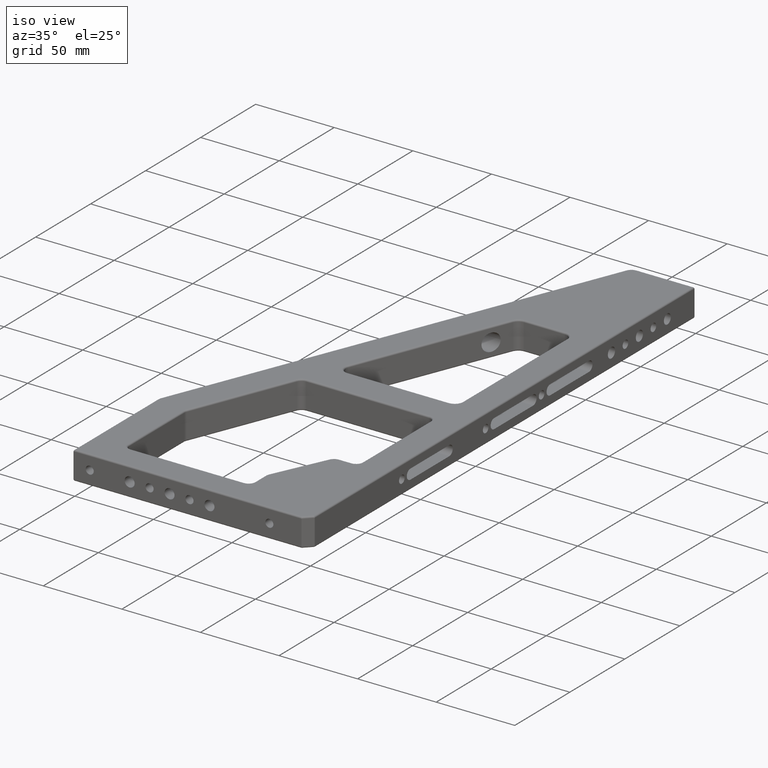
[diagram: clean part render]
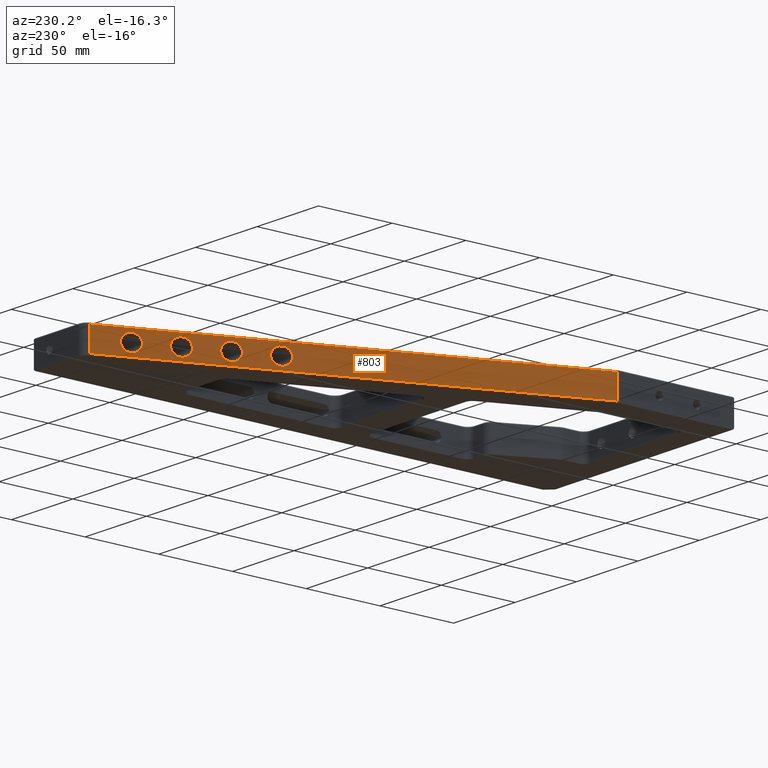
[diagram: tour spotlight — one face highlighted and labeled with its STEP entity id]
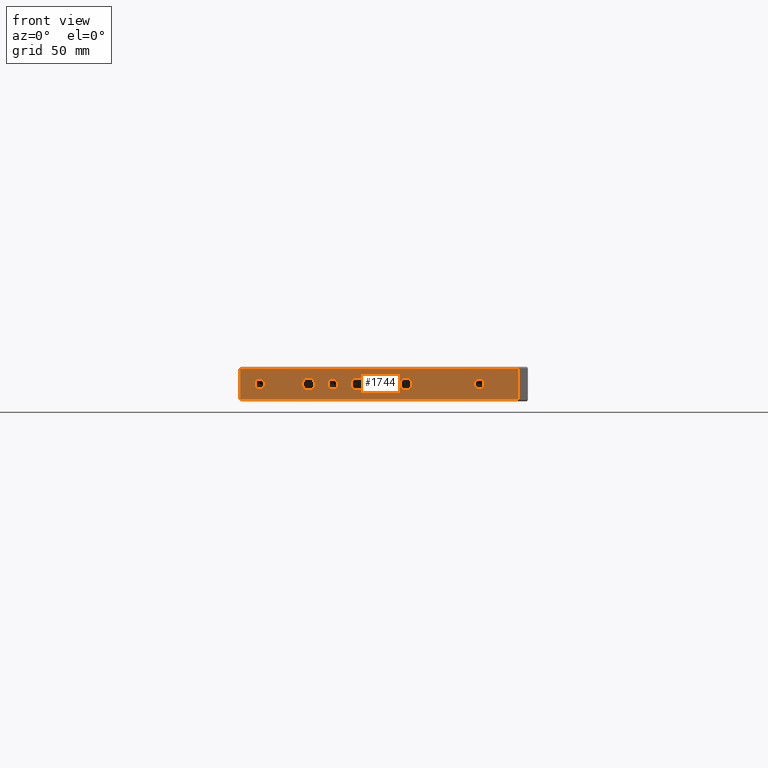
[diagram: tour spotlight — one face highlighted and labeled with its STEP entity id]
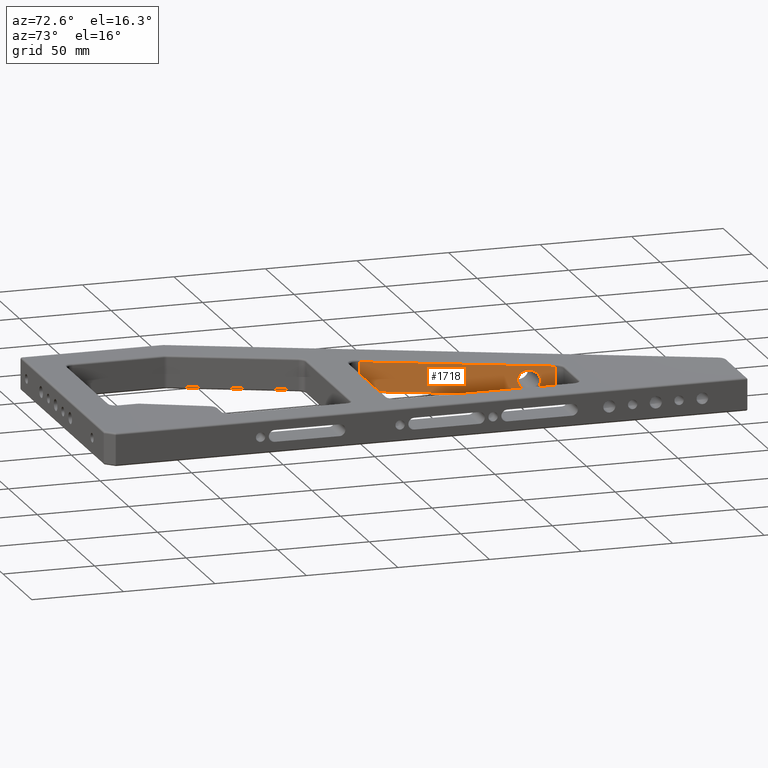
[diagram: tour spotlight — one face highlighted and labeled with its STEP entity id]
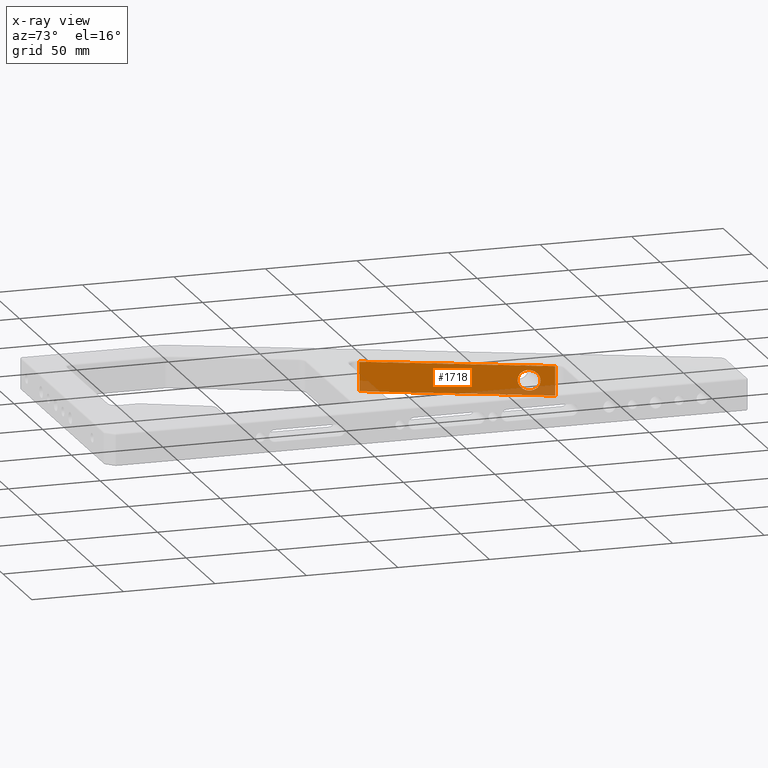
[diagram: x-ray of the same camera — body ghosted, this tour face saturated]
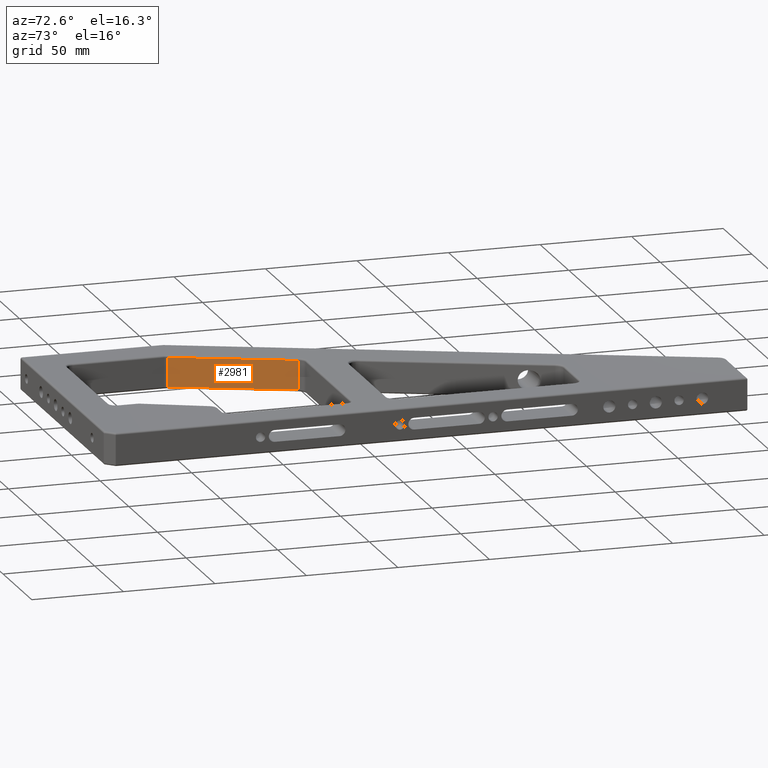
[diagram: tour spotlight — one face highlighted and labeled with its STEP entity id]
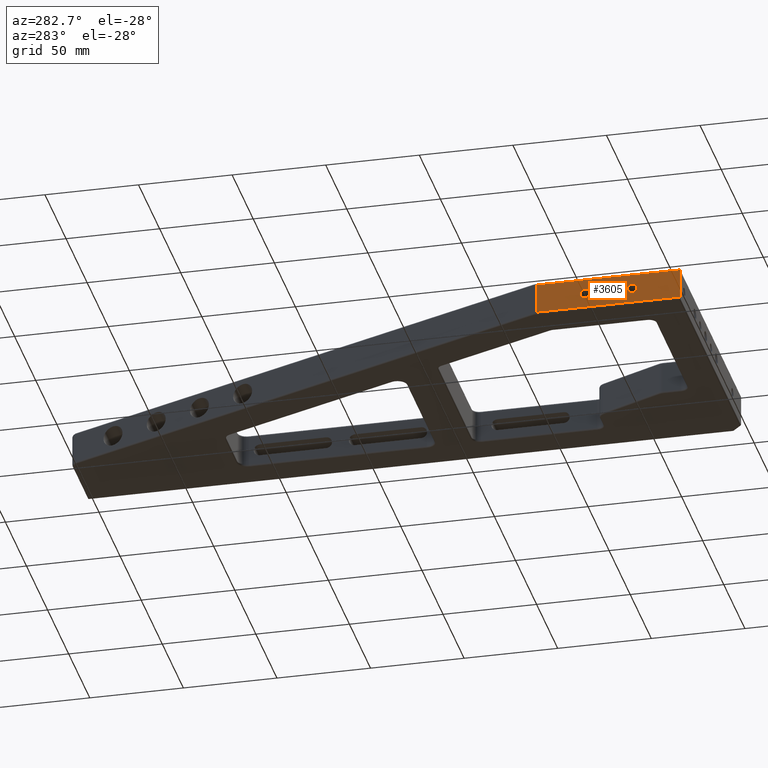
[diagram: tour spotlight — one face highlighted and labeled with its STEP entity id]
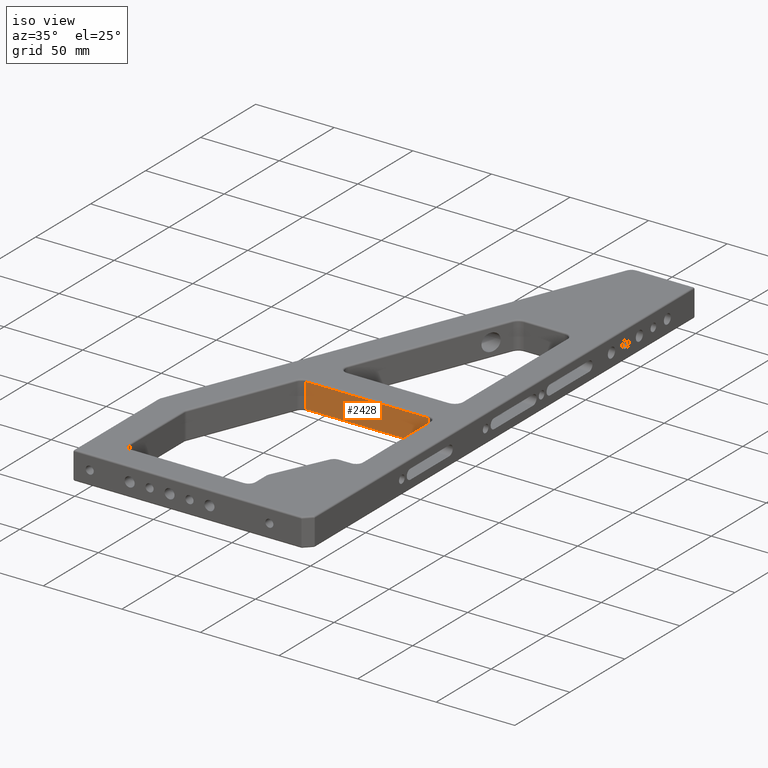
[diagram: tour spotlight — one face highlighted and labeled with its STEP entity id]
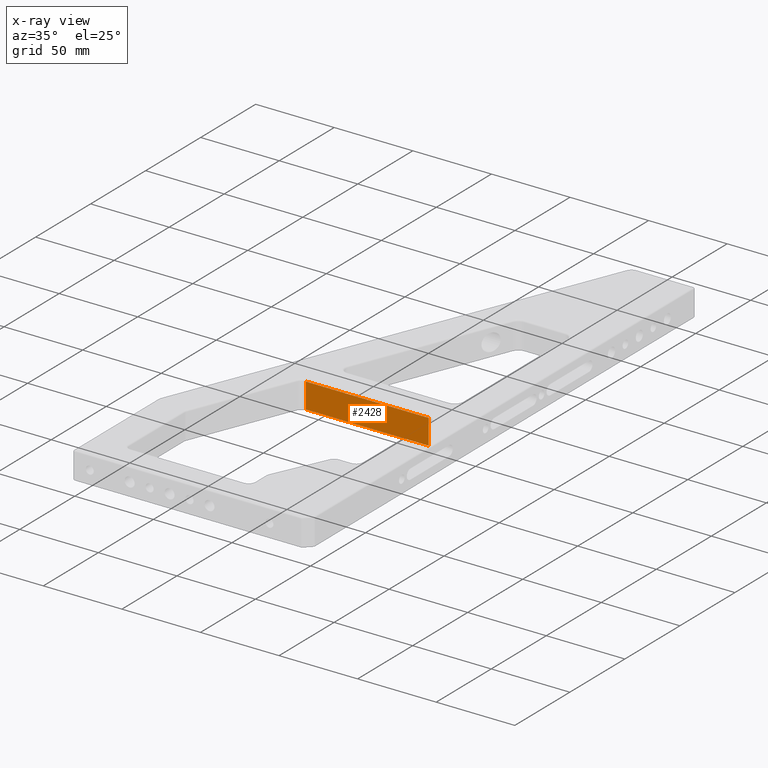
[diagram: x-ray of the same camera — body ghosted, this tour face saturated]
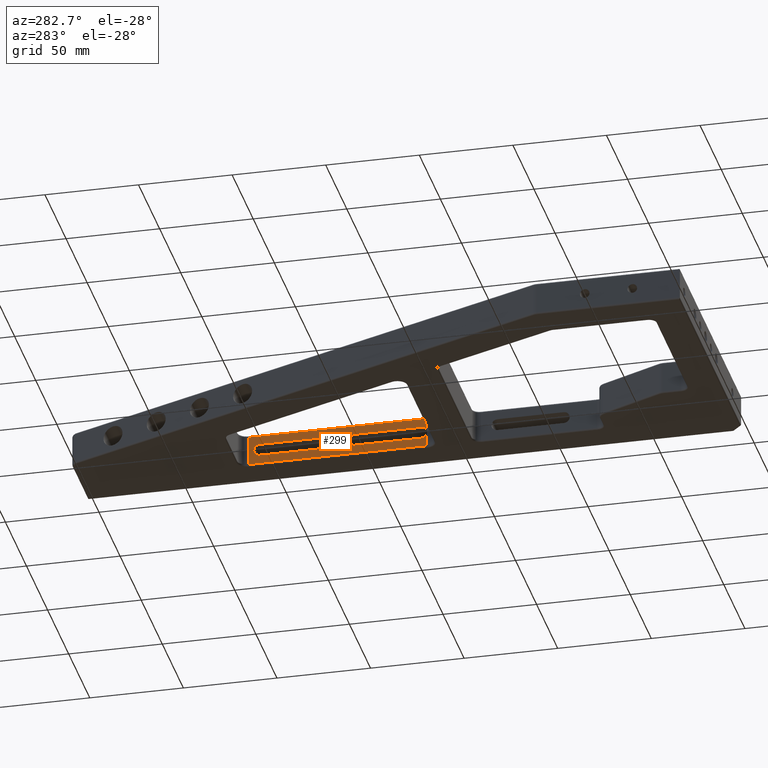
[diagram: tour spotlight — one face highlighted and labeled with its STEP entity id]
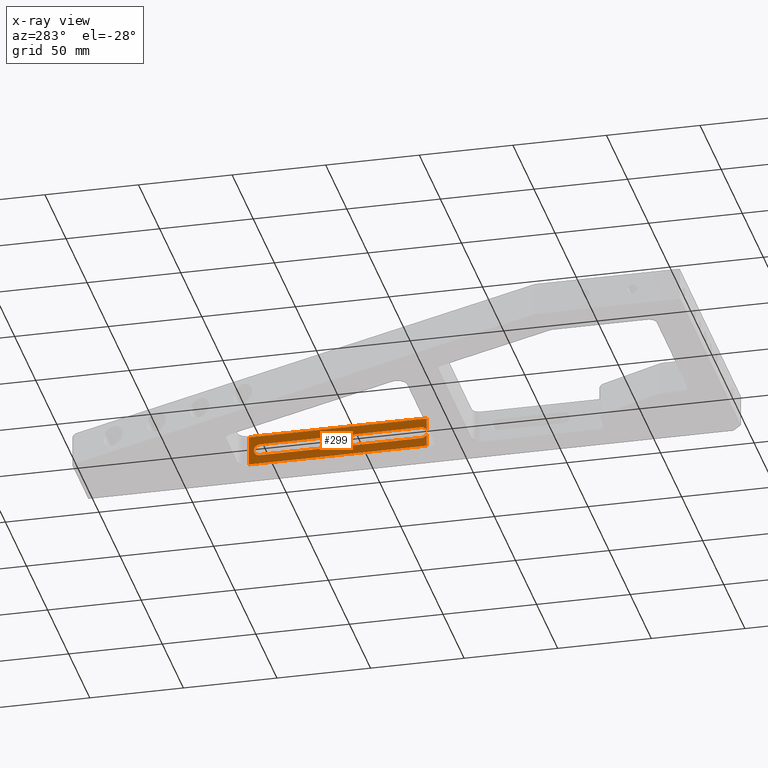
[diagram: x-ray of the same camera — body ghosted, this tour face saturated]
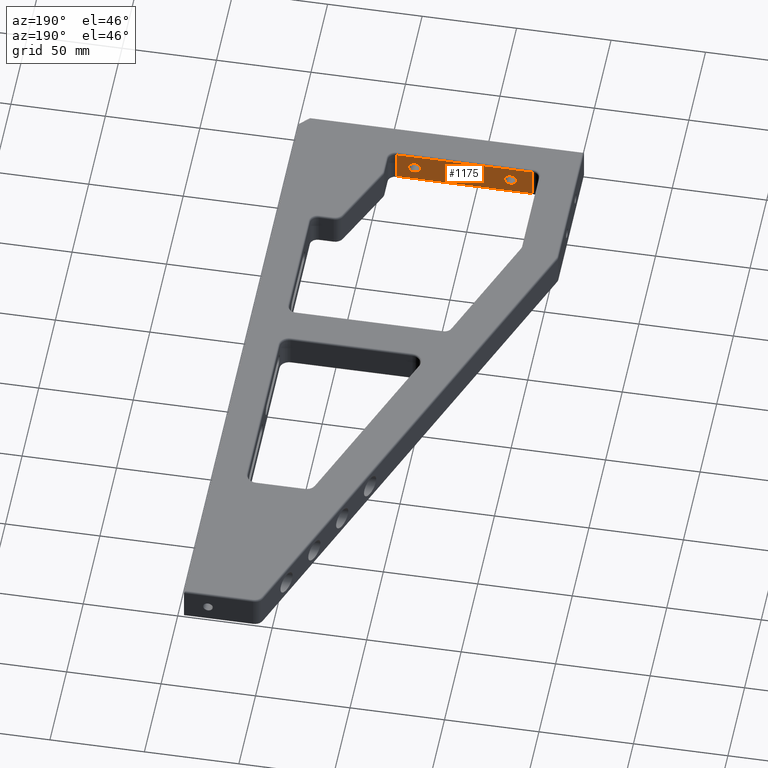
[diagram: tour spotlight — one face highlighted and labeled with its STEP entity id]
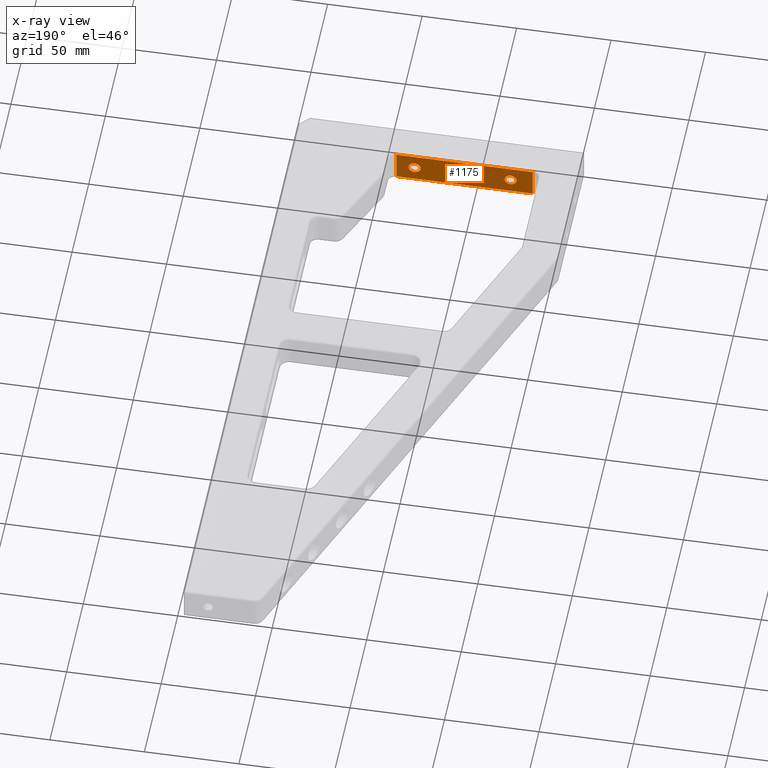
[diagram: x-ray of the same camera — body ghosted, this tour face saturated]
A machine part: a face-by-face anatomy tour. The part has 182 B-rep faces; the first image is the clean iso view, then the 8 largest visible faces are spotlighted one at a time (largest first), each with its STEP entity span.

Face 1 — auxiliary view, entity #803. In plain terms, the highlighted planar face has unit normal (0.9272, -0.3746, 0).
Definition (entity closure, byte-faithful):
#50 = CARTESIAN_POINT ( 'NONE',  ( 81.77876812541457200, 280.1500000000000900, 9.000000000000007100 ) ) ;
#138 = CARTESIAN_POINT ( 'NONE',  ( 81.77876812541457200, 280.1500000000000900, 20.10000000000003300 ) ) ;
#146 = CARTESIAN_POINT ( 'NONE',  ( 109.9999999999999900, 350.0000000000000000, 1.000000000000000900 ) ) ;
#195 = CARTESIAN_POINT ( 'NONE',  ( 71.51650198920161500, 254.7499999999999700, 9.000000000000007100 ) ) ;
#206 = CARTESIAN_POINT ( 'NONE',  ( 92.04103426162745900, 305.5500000000000700, -2.100000000000025400 ) ) ;
#258 = CARTESIAN_POINT ( 'NONE',  ( 97.81860929107013200, 319.8499999999999700, 9.000000000000007100 ) ) ;
#261 =( BOUNDED_CURVE ( )  B_SPLINE_CURVE ( 3, ( #5327, #138, #3147, #562 ),
 .UNSPECIFIED., .F., .F. ) 
 B_SPLINE_CURVE_WITH_KNOTS ( ( 4, 4 ),
 ( 0.0000000000000000000, 3.141592653589793100 ),
 .UNSPECIFIED. ) 
 CURVE ( )  GEOMETRIC_REPRESENTATION_ITEM ( )  RATIONAL_B_SPLINE_CURVE ( ( 1.000000000000000000, 0.3333333333333333700, 0.3333333333333333700, 1.000000000000000000 ) ) 
 REPRESENTATION_ITEM ( '' )  );
#283 = CARTESIAN_POINT ( 'NONE',  ( 102.3033003978403500, 330.9499999999999900, 9.000000000000007100 ) ) ;
#317 = CARTESIAN_POINT ( 'NONE',  ( 102.3033003978403500, 330.9499999999999900, 9.000000000000007100 ) ) ;
#323 = VERTEX_POINT ( 'NONE', #4207 ) ;
#405 = EDGE_LOOP ( 'NONE', ( #2573, #446 ) ) ;
#446 = ORIENTED_EDGE ( 'NONE', *, *, #2054, .T. ) ;
#453 = CARTESIAN_POINT ( 'NONE',  ( 0.3640807271660384500, 78.64157754559613500, 18.00000000000001400 ) ) ;
#562 = CARTESIAN_POINT ( 'NONE',  ( 77.29407701864437300, 269.0500000000000700, 9.000000000000007100 ) ) ;
#569 = CARTESIAN_POINT ( 'NONE',  ( 108.7366233113781800, 346.8730329670795000, 17.00000000000001400 ) ) ;
#578 = EDGE_CURVE ( 'NONE', #3016, #1918, #4254, .T. ) ;
#668 = CARTESIAN_POINT ( 'NONE',  ( 109.9999999999999900, 350.0000000000000000, 18.00000000000001400 ) ) ;
#675 = CARTESIAN_POINT ( 'NONE',  ( 108.7366233113781800, 346.8730329670795000, 18.00000000000001400 ) ) ;
#701 = VERTEX_POINT ( 'NONE', #4354 ) ;
#752 = CARTESIAN_POINT ( 'NONE',  ( 77.29407701864437300, 269.0500000000000700, 9.000000000000007100 ) ) ;
#777 = VERTEX_POINT ( 'NONE', #752 ) ;
#781 = CARTESIAN_POINT ( 'NONE',  ( 87.55634315485724500, 294.4500000000000500, 20.10000000000004100 ) ) ;
#803 = ADVANCED_FACE ( 'NONE', ( #4316, #2009, #2267, #3010, #1860 ), #5020, .F. ) ;
#805 = EDGE_CURVE ( 'NONE', #323, #3266, #2232, .T. ) ;
#933 = CARTESIAN_POINT ( 'NONE',  ( 0.3640807271660384500, 78.64157754559613500, 17.00000000000001400 ) ) ;
#992 = EDGE_LOOP ( 'NONE', ( #4459, #1437 ) ) ;
#1085 =( BOUNDED_CURVE ( )  B_SPLINE_CURVE ( 3, ( #3732, #3289, #2430, #1136 ),
 .UNSPECIFIED., .F., .F. ) 
 B_SPLINE_CURVE_WITH_KNOTS ( ( 4, 4 ),
 ( 3.141592653589793100, 6.283185307179586200 ),
 .UNSPECIFIED. ) 
 CURVE ( )  GEOMETRIC_REPRESENTATION_ITEM ( )  RATIONAL_B_SPLINE_CURVE ( ( 1.000000000000000000, 0.3333333333333333700, 0.3333333333333333700, 1.000000000000000000 ) ) 
 REPRESENTATION_ITEM ( '' )  );
#1125 = CARTESIAN_POINT ( 'NONE',  ( 102.3033003978403500, 330.9499999999999900, 9.000000000000007100 ) ) ;
#1136 = CARTESIAN_POINT ( 'NONE',  ( 71.51650198920161500, 254.7499999999999700, 9.000000000000007100 ) ) ;
#1272 = VECTOR ( 'NONE', #3472, 1000.000000000000000 ) ;
#1437 = ORIENTED_EDGE ( 'NONE', *, *, #5247, .T. ) ;
#1548 =( BOUNDED_CURVE ( )  B_SPLINE_CURVE ( 3, ( #317, #3338, #2062, #5102 ),
 .UNSPECIFIED., .F., .F. ) 
 B_SPLINE_CURVE_WITH_KNOTS ( ( 4, 4 ),
 ( 0.0000000000000000000, 3.141592653589793100 ),
 .UNSPECIFIED. ) 
 CURVE ( )  GEOMETRIC_REPRESENTATION_ITEM ( )  RATIONAL_B_SPLINE_CURVE ( ( 1.000000000000000000, 0.3333333333333333700, 0.3333333333333333700, 1.000000000000000000 ) ) 
 REPRESENTATION_ITEM ( '' )  );
#1624 = VECTOR ( 'NONE', #1883, 1000.000000000000100 ) ;
#1734 =( BOUNDED_CURVE ( )  B_SPLINE_CURVE ( 3, ( #2931, #3356, #781, #3803 ),
 .UNSPECIFIED., .F., .T. ) 
 B_SPLINE_CURVE_WITH_KNOTS ( ( 4, 4 ),
 ( 0.0000000000000000000, 3.141592653589793100 ),
 .UNSPECIFIED. ) 
 CURVE ( )  GEOMETRIC_REPRESENTATION_ITEM ( )  RATIONAL_B_SPLINE_CURVE ( ( 1.000000000000000000, 0.3333333333333333700, 0.3333333333333333700, 1.000000000000000000 ) ) 
 REPRESENTATION_ITEM ( '' )  );
#1860 = FACE_OUTER_BOUND ( 'NONE', #2584, .T. ) ;
#1883 = DIRECTION ( 'NONE',  ( -0.3746065934159093500, -0.9271838545667884200, 0.0000000000000000000 ) ) ;
#1918 = VERTEX_POINT ( 'NONE', #3247 ) ;
#1967 = CARTESIAN_POINT ( 'NONE',  ( 108.7366233113782000, 346.8730329670795500, 17.00000000000001400 ) ) ;
#2009 = FACE_BOUND ( 'NONE', #2167, .T. ) ;
#2054 = EDGE_CURVE ( 'NONE', #3181, #4292, #1085, .T. ) ;
#2062 = CARTESIAN_POINT ( 'NONE',  ( 97.81860929107011800, 319.8499999999999700, 20.10000000000003700 ) ) ;
#2091 = ORIENTED_EDGE ( 'NONE', *, *, #2990, .T. ) ;
#2097 = VERTEX_POINT ( 'NONE', #933 ) ;
#2167 = EDGE_LOOP ( 'NONE', ( #2091, #4753 ) ) ;
#2232 =( BOUNDED_CURVE ( )  B_SPLINE_CURVE ( 3, ( #258, #2849, #3720, #1125 ),
 .UNSPECIFIED., .F., .F. ) 
 B_SPLINE_CURVE_WITH_KNOTS ( ( 4, 4 ),
 ( 3.141592653589793100, 6.283185307179586200 ),
 .UNSPECIFIED. ) 
 CURVE ( )  GEOMETRIC_REPRESENTATION_ITEM ( )  RATIONAL_B_SPLINE_CURVE ( ( 1.000000000000000000, 0.3333333333333333700, 0.3333333333333333700, 1.000000000000000000 ) ) 
 REPRESENTATION_ITEM ( '' )  );
#2267 = FACE_BOUND ( 'NONE', #405, .T. ) ;
#2366 = VECTOR ( 'NONE', #2407, 1000.000000000000100 ) ;
#2375 = CARTESIAN_POINT ( 'NONE',  ( 67.03181088243141500, 243.6499999999999800, 9.000000000000007100 ) ) ;
#2407 = DIRECTION ( 'NONE',  ( 0.3746065934159093500, 0.9271838545667884200, -0.0000000000000000000 ) ) ;
#2416 = DIRECTION ( 'NONE',  ( 0.9271838545667885300, -0.3746065934159094100, 0.0000000000000000000 ) ) ;
#2430 = CARTESIAN_POINT ( 'NONE',  ( 71.51650198920161500, 254.7500000000000300, -2.100000000000040900 ) ) ;
#2573 = ORIENTED_EDGE ( 'NONE', *, *, #4184, .T. ) ;
#2584 = EDGE_LOOP ( 'NONE', ( #4736, #4233, #5159, #3819 ) ) ;
#2640 = CARTESIAN_POINT ( 'NONE',  ( 81.77876812541457200, 280.1500000000000900, -2.100000000000020100 ) ) ;
#2753 = LINE ( 'NONE', #146, #1624 ) ;
#2783 = ORIENTED_EDGE ( 'NONE', *, *, #4905, .T. ) ;
#2795 = CARTESIAN_POINT ( 'NONE',  ( 87.55634315485724500, 294.4500000000000500, -2.100000000000025400 ) ) ;
#2829 = DIRECTION ( 'NONE',  ( 0.0000000000000000000, 0.0000000000000000000, -1.000000000000000000 ) ) ;
#2849 = CARTESIAN_POINT ( 'NONE',  ( 97.81860929107011800, 319.8499999999999700, -2.100000000000021800 ) ) ;
#2878 = EDGE_CURVE ( 'NONE', #701, #2097, #3566, .T. ) ;
#2886 = CARTESIAN_POINT ( 'NONE',  ( 87.55634315485725900, 294.4500000000000500, 9.000000000000007100 ) ) ;
#2931 = CARTESIAN_POINT ( 'NONE',  ( 92.04103426162745900, 305.5500000000000700, 9.000000000000007100 ) ) ;
#2950 = VECTOR ( 'NONE', #2829, 1000.000000000000000 ) ;
#2990 = EDGE_CURVE ( 'NONE', #3996, #777, #261, .T. ) ;
#3002 = CARTESIAN_POINT ( 'NONE',  ( 71.51650198920161500, 254.7499999999999700, 9.000000000000007100 ) ) ;
#3010 = FACE_BOUND ( 'NONE', #4973, .T. ) ;
#3014 = EDGE_CURVE ( 'NONE', #1918, #701, #2753, .T. ) ;
#3016 = VERTEX_POINT ( 'NONE', #569 ) ;
#3085 = VERTEX_POINT ( 'NONE', #4928 ) ;
#3115 = AXIS2_PLACEMENT_3D ( 'NONE', #668, #2416, #5453 ) ;
#3147 = CARTESIAN_POINT ( 'NONE',  ( 77.29407701864435900, 269.0500000000000700, 20.10000000000003300 ) ) ;
#3167 = VERTEX_POINT ( 'NONE', #4993 ) ;
#3181 = VERTEX_POINT ( 'NONE', #3691 ) ;
#3216 = CARTESIAN_POINT ( 'NONE',  ( 92.04103426162745900, 305.5500000000000700, 9.000000000000007100 ) ) ;
#3247 = CARTESIAN_POINT ( 'NONE',  ( 108.7366233113781800, 346.8730329670795000, 1.000000000000000900 ) ) ;
#3266 = VERTEX_POINT ( 'NONE', #283 ) ;
#3289 = CARTESIAN_POINT ( 'NONE',  ( 67.03181088243141500, 243.6500000000000300, -2.100000000000040900 ) ) ;
#3338 = CARTESIAN_POINT ( 'NONE',  ( 102.3033003978403500, 330.9499999999999900, 20.10000000000003700 ) ) ;
#3356 = CARTESIAN_POINT ( 'NONE',  ( 92.04103426162745900, 305.5500000000000700, 20.10000000000004100 ) ) ;
#3472 = DIRECTION ( 'NONE',  ( -0.0000000000000000000, -0.0000000000000000000, 1.000000000000000000 ) ) ;
#3504 = LINE ( 'NONE', #1967, #2366 ) ;
#3566 = LINE ( 'NONE', #453, #1272 ) ;
#3652 = CARTESIAN_POINT ( 'NONE',  ( 71.51650198920161500, 254.7500000000000300, 20.10000000000005500 ) ) ;
#3691 = CARTESIAN_POINT ( 'NONE',  ( 67.03181088243141500, 243.6499999999999800, 9.000000000000007100 ) ) ;
#3720 = CARTESIAN_POINT ( 'NONE',  ( 102.3033003978403500, 330.9499999999999900, -2.100000000000021800 ) ) ;
#3732 = CARTESIAN_POINT ( 'NONE',  ( 67.03181088243141500, 243.6499999999999800, 9.000000000000007100 ) ) ;
#3803 = CARTESIAN_POINT ( 'NONE',  ( 87.55634315485725900, 294.4500000000000500, 9.000000000000007100 ) ) ;
#3819 = ORIENTED_EDGE ( 'NONE', *, *, #5290, .T. ) ;
#3956 = CARTESIAN_POINT ( 'NONE',  ( 81.77876812541457200, 280.1500000000000900, 9.000000000000007100 ) ) ;
#3996 = VERTEX_POINT ( 'NONE', #3956 ) ;
#4184 = EDGE_CURVE ( 'NONE', #4292, #3181, #5535, .T. ) ;
#4207 = CARTESIAN_POINT ( 'NONE',  ( 97.81860929107013200, 319.8499999999999700, 9.000000000000007100 ) ) ;
#4233 = ORIENTED_EDGE ( 'NONE', *, *, #3014, .T. ) ;
#4254 = LINE ( 'NONE', #675, #2950 ) ;
#4292 = VERTEX_POINT ( 'NONE', #3002 ) ;
#4316 = FACE_BOUND ( 'NONE', #992, .T. ) ;
#4354 = CARTESIAN_POINT ( 'NONE',  ( 0.3640807271660384500, 78.64157754559613500, 1.000000000000000900 ) ) ;
#4400 = EDGE_CURVE ( 'NONE', #777, #3996, #4610, .T. ) ;
#4459 = ORIENTED_EDGE ( 'NONE', *, *, #5420, .T. ) ;
#4610 =( BOUNDED_CURVE ( )  B_SPLINE_CURVE ( 3, ( #4801, #5248, #2640, #50 ),
 .UNSPECIFIED., .F., .F. ) 
 B_SPLINE_CURVE_WITH_KNOTS ( ( 4, 4 ),
 ( 3.141592653589793100, 6.283185307179586200 ),
 .UNSPECIFIED. ) 
 CURVE ( )  GEOMETRIC_REPRESENTATION_ITEM ( )  RATIONAL_B_SPLINE_CURVE ( ( 1.000000000000000000, 0.3333333333333333700, 0.3333333333333333700, 1.000000000000000000 ) ) 
 REPRESENTATION_ITEM ( '' )  );
#4736 = ORIENTED_EDGE ( 'NONE', *, *, #578, .T. ) ;
#4742 =( BOUNDED_CURVE ( )  B_SPLINE_CURVE ( 3, ( #2886, #2795, #206, #3216 ),
 .UNSPECIFIED., .F., .F. ) 
 B_SPLINE_CURVE_WITH_KNOTS ( ( 4, 4 ),
 ( 3.141592653589793100, 6.283185307179586200 ),
 .UNSPECIFIED. ) 
 CURVE ( )  GEOMETRIC_REPRESENTATION_ITEM ( )  RATIONAL_B_SPLINE_CURVE ( ( 1.000000000000000000, 0.3333333333333333700, 0.3333333333333333700, 1.000000000000000000 ) ) 
 REPRESENTATION_ITEM ( '' )  );
#4753 = ORIENTED_EDGE ( 'NONE', *, *, #4400, .T. ) ;
#4801 = CARTESIAN_POINT ( 'NONE',  ( 77.29407701864437300, 269.0500000000000700, 9.000000000000007100 ) ) ;
#4905 = EDGE_CURVE ( 'NONE', #3266, #323, #1548, .T. ) ;
#4928 = CARTESIAN_POINT ( 'NONE',  ( 87.55634315485725900, 294.4500000000000500, 9.000000000000007100 ) ) ;
#4973 = EDGE_LOOP ( 'NONE', ( #2783, #5017 ) ) ;
#4975 = CARTESIAN_POINT ( 'NONE',  ( 67.03181088243141500, 243.6500000000000300, 20.10000000000005500 ) ) ;
#4993 = CARTESIAN_POINT ( 'NONE',  ( 92.04103426162745900, 305.5500000000000700, 9.000000000000007100 ) ) ;
#5017 = ORIENTED_EDGE ( 'NONE', *, *, #805, .T. ) ;
#5020 = PLANE ( 'NONE',  #3115 ) ;
#5102 = CARTESIAN_POINT ( 'NONE',  ( 97.81860929107013200, 319.8499999999999700, 9.000000000000007100 ) ) ;
#5159 = ORIENTED_EDGE ( 'NONE', *, *, #2878, .T. ) ;
#5247 = EDGE_CURVE ( 'NONE', #3085, #3167, #4742, .T. ) ;
#5248 = CARTESIAN_POINT ( 'NONE',  ( 77.29407701864435900, 269.0500000000000700, -2.100000000000020100 ) ) ;
#5290 = EDGE_CURVE ( 'NONE', #2097, #3016, #3504, .T. ) ;
#5327 = CARTESIAN_POINT ( 'NONE',  ( 81.77876812541457200, 280.1500000000000900, 9.000000000000007100 ) ) ;
#5420 = EDGE_CURVE ( 'NONE', #3167, #3085, #1734, .T. ) ;
#5453 = DIRECTION ( 'NONE',  ( 0.3746065934159093500, 0.9271838545667884200, 0.0000000000000000000 ) ) ;
#5535 =( BOUNDED_CURVE ( )  B_SPLINE_CURVE ( 3, ( #195, #3652, #4975, #2375 ),
 .UNSPECIFIED., .F., .F. ) 
 B_SPLINE_CURVE_WITH_KNOTS ( ( 4, 4 ),
 ( 0.0000000000000000000, 3.141592653589793100 ),
 .UNSPECIFIED. ) 
 CURVE ( )  GEOMETRIC_REPRESENTATION_ITEM ( )  RATIONAL_B_SPLINE_CURVE ( ( 1.000000000000000000, 0.3333333333333333700, 0.3333333333333333700, 1.000000000000000000 ) ) 
 REPRESENTATION_ITEM ( '' )  );

Face 2 — front view, entity #1744. In plain terms, the highlighted planar face has unit normal (0, 1, 0).
Definition (entity closure, byte-faithful):
#13 = EDGE_LOOP ( 'NONE', ( #1095, #755 ) ) ;
#59 = CARTESIAN_POINT ( 'NONE',  ( 10.29999999999999000, 0.0000000000000000000, 9.000000000000007100 ) ) ;
#137 = AXIS2_PLACEMENT_3D ( 'NONE', #3521, #928, #3974 ) ;
#183 = CARTESIAN_POINT ( 'NONE',  ( 48.39999999999999100, 0.0000000000000000000, 6.447300000000010000 ) ) ;
#189 = CARTESIAN_POINT ( 'NONE',  ( 145.0000000000000000, 0.0000000000000000000, 1.000000000000000900 ) ) ;
#225 = DIRECTION ( 'NONE',  ( 0.0000000000000000000, 0.0000000000000000000, -1.000000000000000000 ) ) ;
#250 = CARTESIAN_POINT ( 'NONE',  ( 0.0000000000000000000, 0.0000000000000000000, 17.00000000000001400 ) ) ;
#271 = CARTESIAN_POINT ( 'NONE',  ( 61.09999999999999400, -1.387778780781445700E-014, 9.000000000000007100 ) ) ;
#315 = EDGE_CURVE ( 'NONE', #1652, #1660, #4994, .T. ) ;
#332 = EDGE_CURVE ( 'NONE', #464, #932, #2015, .T. ) ;
#400 = DIRECTION ( 'NONE',  ( 0.0000000000000000000, 0.0000000000000000000, 1.000000000000000000 ) ) ;
#431 = DIRECTION ( 'NONE',  ( -0.0000000000000000000, 1.000000000000000000, -0.0000000000000000000 ) ) ;
#464 = VERTEX_POINT ( 'NONE', #3998 ) ;
#491 = DIRECTION ( 'NONE',  ( 0.0000000000000000000, 0.0000000000000000000, -1.000000000000000000 ) ) ;
#493 = EDGE_CURVE ( 'NONE', #3457, #4052, #2200, .T. ) ;
#544 = FACE_OUTER_BOUND ( 'NONE', #1911, .T. ) ;
#551 = LINE ( 'NONE', #1420, #3880 ) ;
#572 = CARTESIAN_POINT ( 'NONE',  ( 10.29999999999999000, 0.0000000000000000000, 11.55270000000000700 ) ) ;
#644 = EDGE_CURVE ( 'NONE', #1790, #4480, #1677, .T. ) ;
#684 = FACE_BOUND ( 'NONE', #1102, .T. ) ;
#695 = CARTESIAN_POINT ( 'NONE',  ( 0.0000000000000000000, 0.0000000000000000000, 18.00000000000001400 ) ) ;
#697 = DIRECTION ( 'NONE',  ( 0.0000000000000000000, 0.0000000000000000000, 1.000000000000000000 ) ) ;
#755 = ORIENTED_EDGE ( 'NONE', *, *, #5320, .T. ) ;
#758 = AXIS2_PLACEMENT_3D ( 'NONE', #5409, #2809, #225 ) ;
#788 = AXIS2_PLACEMENT_3D ( 'NONE', #4105, #1510, #4540 ) ;
#794 = DIRECTION ( 'NONE',  ( -0.0000000000000000000, -1.000000000000000000, -0.0000000000000000000 ) ) ;
#800 = AXIS2_PLACEMENT_3D ( 'NONE', #1168, #4206, #1615 ) ;
#806 = CIRCLE ( 'NONE', #3156, 3.174999999999990500 ) ;
#880 = ORIENTED_EDGE ( 'NONE', *, *, #2189, .F. ) ;
#903 = DIRECTION ( 'NONE',  ( -0.0000000000000000000, 1.000000000000000000, -0.0000000000000000000 ) ) ;
#916 = CARTESIAN_POINT ( 'NONE',  ( 73.79999999999999700, 0.0000000000000000000, 9.000000000000007100 ) ) ;
#928 = DIRECTION ( 'NONE',  ( -0.0000000000000000000, 1.000000000000000000, -0.0000000000000000000 ) ) ;
#932 = VERTEX_POINT ( 'NONE', #250 ) ;
#961 = ORIENTED_EDGE ( 'NONE', *, *, #4336, .T. ) ;
#984 = VERTEX_POINT ( 'NONE', #2014 ) ;
#1095 = ORIENTED_EDGE ( 'NONE', *, *, #2785, .T. ) ;
#1102 = EDGE_LOOP ( 'NONE', ( #1484, #880 ) ) ;
#1129 = PLANE ( 'NONE',  #3093 ) ;
#1146 = ORIENTED_EDGE ( 'NONE', *, *, #1611, .F. ) ;
#1168 = CARTESIAN_POINT ( 'NONE',  ( 48.39999999999999100, 0.0000000000000000000, 9.000000000000007100 ) ) ;
#1284 = CARTESIAN_POINT ( 'NONE',  ( 0.0000000000000000000, 0.0000000000000000000, 1.000000000000000900 ) ) ;
#1360 = DIRECTION ( 'NONE',  ( 0.0000000000000000000, 0.0000000000000000000, -1.000000000000000000 ) ) ;
#1397 = DIRECTION ( 'NONE',  ( 0.0000000000000000000, 0.0000000000000000000, -1.000000000000000000 ) ) ;
#1408 = EDGE_LOOP ( 'NONE', ( #4212, #2179 ) ) ;
#1420 = CARTESIAN_POINT ( 'NONE',  ( 0.0000000000000000000, 0.0000000000000000000, 18.00000000000001400 ) ) ;
#1443 = CARTESIAN_POINT ( 'NONE',  ( 86.50000000000000000, 0.0000000000000000000, 5.825000000000010800 ) ) ;
#1484 = ORIENTED_EDGE ( 'NONE', *, *, #2287, .F. ) ;
#1501 = CIRCLE ( 'NONE', #4376, 2.552699999999998000 ) ;
#1510 = DIRECTION ( 'NONE',  ( -0.0000000000000000000, 1.000000000000000000, -0.0000000000000000000 ) ) ;
#1580 = DIRECTION ( 'NONE',  ( 0.0000000000000000000, 1.000000000000000000, 0.0000000000000000000 ) ) ;
#1611 = EDGE_CURVE ( 'NONE', #2174, #5489, #1501, .T. ) ;
#1615 = DIRECTION ( 'NONE',  ( 0.0000000000000000000, 0.0000000000000000000, -1.000000000000000000 ) ) ;
#1652 = VERTEX_POINT ( 'NONE', #183 ) ;
#1660 = VERTEX_POINT ( 'NONE', #2750 ) ;
#1671 = EDGE_CURVE ( 'NONE', #984, #3713, #3386, .T. ) ;
#1675 = AXIS2_PLACEMENT_3D ( 'NONE', #916, #3964, #1360 ) ;
#1677 = CIRCLE ( 'NONE', #4232, 3.174999999999997200 ) ;
#1714 = FACE_BOUND ( 'NONE', #3928, .T. ) ;
#1744 = ADVANCED_FACE ( 'NONE', ( #5168, #1834, #4290, #684, #4009, #2851, #1714, #544 ), #1129, .F. ) ;
#1756 = ORIENTED_EDGE ( 'NONE', *, *, #3571, .F. ) ;
#1773 = CIRCLE ( 'NONE', #800, 2.552699999999998000 ) ;
#1790 = VERTEX_POINT ( 'NONE', #1443 ) ;
#1833 = CARTESIAN_POINT ( 'NONE',  ( 73.79999999999999700, 0.0000000000000000000, 9.000000000000007100 ) ) ;
#1834 = FACE_BOUND ( 'NONE', #5058, .T. ) ;
#1879 = ORIENTED_EDGE ( 'NONE', *, *, #332, .T. ) ;
#1890 = DIRECTION ( 'NONE',  ( 0.0000000000000000000, 0.0000000000000000000, -1.000000000000000000 ) ) ;
#1892 = VERTEX_POINT ( 'NONE', #189 ) ;
#1909 = DIRECTION ( 'NONE',  ( -0.0000000000000000000, -1.000000000000000000, -0.0000000000000000000 ) ) ;
#1911 = EDGE_LOOP ( 'NONE', ( #4611, #961, #2495, #1879 ) ) ;
#1950 = AXIS2_PLACEMENT_3D ( 'NONE', #3484, #903, #3945 ) ;
#1980 = CIRCLE ( 'NONE', #5224, 2.552699999999990900 ) ;
#2014 = CARTESIAN_POINT ( 'NONE',  ( 35.69999999999999600, -1.387778780781445700E-014, 5.825000000000010800 ) ) ;
#2015 = LINE ( 'NONE', #3797, #5333 ) ;
#2137 = EDGE_CURVE ( 'NONE', #932, #3320, #551, .T. ) ;
#2148 = CIRCLE ( 'NONE', #4908, 2.552699999999998000 ) ;
#2153 = CARTESIAN_POINT ( 'NONE',  ( 73.79999999999999700, 0.0000000000000000000, 11.55270000000001200 ) ) ;
#2169 = DIRECTION ( 'NONE',  ( 1.000000000000000000, -0.0000000000000000000, 0.0000000000000000000 ) ) ;
#2174 = VERTEX_POINT ( 'NONE', #572 ) ;
#2179 = ORIENTED_EDGE ( 'NONE', *, *, #644, .T. ) ;
#2189 = EDGE_CURVE ( 'NONE', #3365, #5230, #1980, .T. ) ;
#2200 = CIRCLE ( 'NONE', #2489, 2.552700000000005100 ) ;
#2222 = CARTESIAN_POINT ( 'NONE',  ( 61.09999999999999400, -1.387778780781445700E-014, 5.825000000000017900 ) ) ;
#2223 = CIRCLE ( 'NONE', #3466, 3.174999999999990500 ) ;
#2240 = EDGE_LOOP ( 'NONE', ( #1756, #4356 ) ) ;
#2260 = CARTESIAN_POINT ( 'NONE',  ( 86.50000000000000000, 0.0000000000000000000, 12.17500000000000600 ) ) ;
#2278 = DIRECTION ( 'NONE',  ( -0.0000000000000000000, -1.000000000000000000, -0.0000000000000000000 ) ) ;
#2287 = EDGE_CURVE ( 'NONE', #5230, #3365, #4634, .T. ) ;
#2489 = AXIS2_PLACEMENT_3D ( 'NONE', #1833, #2278, #1397 ) ;
#2495 = ORIENTED_EDGE ( 'NONE', *, *, #3784, .T. ) ;
#2592 = CARTESIAN_POINT ( 'NONE',  ( 61.09999999999999400, -1.387778780781445700E-014, 12.17499999999999900 ) ) ;
#2631 = EDGE_LOOP ( 'NONE', ( #4971, #1146 ) ) ;
#2665 = CIRCLE ( 'NONE', #1950, 3.174999999999997200 ) ;
#2726 = VECTOR ( 'NONE', #3009, 1000.000000000000000 ) ;
#2750 = CARTESIAN_POINT ( 'NONE',  ( 48.39999999999999100, 0.0000000000000000000, 11.55270000000000700 ) ) ;
#2785 = EDGE_CURVE ( 'NONE', #3480, #3593, #806, .T. ) ;
#2809 = DIRECTION ( 'NONE',  ( -0.0000000000000000000, -1.000000000000000000, -0.0000000000000000000 ) ) ;
#2851 = FACE_BOUND ( 'NONE', #13, .T. ) ;
#2907 = EDGE_CURVE ( 'NONE', #5489, #2174, #2148, .T. ) ;
#2945 = DIRECTION ( 'NONE',  ( 0.0000000000000000000, 0.0000000000000000000, -1.000000000000000000 ) ) ;
#2952 = CARTESIAN_POINT ( 'NONE',  ( 124.5999999999999900, 0.0000000000000000000, 11.55270000000000000 ) ) ;
#2992 = DIRECTION ( 'NONE',  ( -0.0000000000000000000, 1.000000000000000000, -0.0000000000000000000 ) ) ;
#3009 = DIRECTION ( 'NONE',  ( 0.0000000000000000000, 0.0000000000000000000, 1.000000000000000000 ) ) ;
#3017 = LINE ( 'NONE', #1284, #4919 ) ;
#3074 = DIRECTION ( 'NONE',  ( -0.0000000000000000000, -1.000000000000000000, -0.0000000000000000000 ) ) ;
#3093 = AXIS2_PLACEMENT_3D ( 'NONE', #695, #1580, #4606 ) ;
#3127 = ORIENTED_EDGE ( 'NONE', *, *, #315, .F. ) ;
#3156 = AXIS2_PLACEMENT_3D ( 'NONE', #5592, #2992, #400 ) ;
#3287 = DIRECTION ( 'NONE',  ( -0.0000000000000000000, 1.000000000000000000, -0.0000000000000000000 ) ) ;
#3320 = VERTEX_POINT ( 'NONE', #4259 ) ;
#3365 = VERTEX_POINT ( 'NONE', #2952 ) ;
#3366 = CARTESIAN_POINT ( 'NONE',  ( 35.69999999999999600, -1.387778780781445700E-014, 12.17500000000000600 ) ) ;
#3369 = CARTESIAN_POINT ( 'NONE',  ( 48.39999999999999100, 0.0000000000000000000, 9.000000000000007100 ) ) ;
#3377 = CARTESIAN_POINT ( 'NONE',  ( 10.29999999999999000, 0.0000000000000000000, 9.000000000000007100 ) ) ;
#3386 = CIRCLE ( 'NONE', #788, 3.174999999999997200 ) ;
#3416 = CARTESIAN_POINT ( 'NONE',  ( 10.29999999999999000, 0.0000000000000000000, 6.447300000000010000 ) ) ;
#3449 = DIRECTION ( 'NONE',  ( 0.0000000000000000000, 0.0000000000000000000, 1.000000000000000000 ) ) ;
#3457 = VERTEX_POINT ( 'NONE', #2153 ) ;
#3466 = AXIS2_PLACEMENT_3D ( 'NONE', #271, #3287, #697 ) ;
#3480 = VERTEX_POINT ( 'NONE', #2592 ) ;
#3484 = CARTESIAN_POINT ( 'NONE',  ( 86.50000000000000000, 0.0000000000000000000, 9.000000000000007100 ) ) ;
#3521 = CARTESIAN_POINT ( 'NONE',  ( 35.69999999999999600, -1.387778780781445700E-014, 9.000000000000007100 ) ) ;
#3529 = EDGE_CURVE ( 'NONE', #4480, #1790, #2665, .T. ) ;
#3571 = EDGE_CURVE ( 'NONE', #4052, #3457, #4833, .T. ) ;
#3593 = VERTEX_POINT ( 'NONE', #2222 ) ;
#3602 = LINE ( 'NONE', #4333, #2726 ) ;
#3713 = VERTEX_POINT ( 'NONE', #3366 ) ;
#3784 = EDGE_CURVE ( 'NONE', #1892, #464, #3602, .T. ) ;
#3797 = CARTESIAN_POINT ( 'NONE',  ( 0.0000000000000000000, 0.0000000000000000000, 17.00000000000001400 ) ) ;
#3880 = VECTOR ( 'NONE', #4037, 1000.000000000000000 ) ;
#3928 = EDGE_LOOP ( 'NONE', ( #4198, #5124 ) ) ;
#3945 = DIRECTION ( 'NONE',  ( 0.0000000000000000000, 0.0000000000000000000, 1.000000000000000000 ) ) ;
#3964 = DIRECTION ( 'NONE',  ( -0.0000000000000000000, -1.000000000000000000, -0.0000000000000000000 ) ) ;
#3974 = DIRECTION ( 'NONE',  ( 0.0000000000000000000, 0.0000000000000000000, 1.000000000000000000 ) ) ;
#3998 = CARTESIAN_POINT ( 'NONE',  ( 145.0000000000000000, 0.0000000000000000000, 17.00000000000001400 ) ) ;
#4000 = EDGE_CURVE ( 'NONE', #3713, #984, #5340, .T. ) ;
#4009 = FACE_BOUND ( 'NONE', #1408, .T. ) ;
#4019 = AXIS2_PLACEMENT_3D ( 'NONE', #3369, #794, #2945 ) ;
#4037 = DIRECTION ( 'NONE',  ( -0.0000000000000000000, -0.0000000000000000000, -1.000000000000000000 ) ) ;
#4052 = VERTEX_POINT ( 'NONE', #5303 ) ;
#4105 = CARTESIAN_POINT ( 'NONE',  ( 35.69999999999999600, -1.387778780781445700E-014, 9.000000000000007100 ) ) ;
#4198 = ORIENTED_EDGE ( 'NONE', *, *, #4000, .T. ) ;
#4206 = DIRECTION ( 'NONE',  ( -0.0000000000000000000, -1.000000000000000000, -0.0000000000000000000 ) ) ;
#4212 = ORIENTED_EDGE ( 'NONE', *, *, #3529, .T. ) ;
#4232 = AXIS2_PLACEMENT_3D ( 'NONE', #5617, #431, #3449 ) ;
#4259 = CARTESIAN_POINT ( 'NONE',  ( 0.0000000000000000000, 0.0000000000000000000, 1.000000000000000900 ) ) ;
#4290 = FACE_BOUND ( 'NONE', #2240, .T. ) ;
#4333 = CARTESIAN_POINT ( 'NONE',  ( 145.0000000000000000, 0.0000000000000000000, 18.00000000000001400 ) ) ;
#4336 = EDGE_CURVE ( 'NONE', #3320, #1892, #3017, .T. ) ;
#4356 = ORIENTED_EDGE ( 'NONE', *, *, #493, .F. ) ;
#4376 = AXIS2_PLACEMENT_3D ( 'NONE', #3377, #4486, #1890 ) ;
#4456 = ORIENTED_EDGE ( 'NONE', *, *, #4835, .F. ) ;
#4480 = VERTEX_POINT ( 'NONE', #2260 ) ;
#4486 = DIRECTION ( 'NONE',  ( -0.0000000000000000000, -1.000000000000000000, -0.0000000000000000000 ) ) ;
#4503 = CARTESIAN_POINT ( 'NONE',  ( 124.5999999999999900, 0.0000000000000000000, 9.000000000000007100 ) ) ;
#4540 = DIRECTION ( 'NONE',  ( 0.0000000000000000000, 0.0000000000000000000, 1.000000000000000000 ) ) ;
#4606 = DIRECTION ( 'NONE',  ( 0.0000000000000000000, -0.0000000000000000000, 1.000000000000000000 ) ) ;
#4611 = ORIENTED_EDGE ( 'NONE', *, *, #2137, .T. ) ;
#4624 = DIRECTION ( 'NONE',  ( -1.000000000000000000, 0.0000000000000000000, -0.0000000000000000000 ) ) ;
#4634 = CIRCLE ( 'NONE', #758, 2.552699999999990900 ) ;
#4833 = CIRCLE ( 'NONE', #1675, 2.552700000000005100 ) ;
#4835 = EDGE_CURVE ( 'NONE', #1660, #1652, #1773, .T. ) ;
#4888 = CARTESIAN_POINT ( 'NONE',  ( 124.5999999999999900, 0.0000000000000000000, 6.447300000000017100 ) ) ;
#4908 = AXIS2_PLACEMENT_3D ( 'NONE', #59, #3074, #491 ) ;
#4919 = VECTOR ( 'NONE', #2169, 1000.000000000000000 ) ;
#4936 = DIRECTION ( 'NONE',  ( 0.0000000000000000000, 0.0000000000000000000, -1.000000000000000000 ) ) ;
#4971 = ORIENTED_EDGE ( 'NONE', *, *, #2907, .F. ) ;
#4994 = CIRCLE ( 'NONE', #4019, 2.552699999999998000 ) ;
#5058 = EDGE_LOOP ( 'NONE', ( #3127, #4456 ) ) ;
#5124 = ORIENTED_EDGE ( 'NONE', *, *, #1671, .T. ) ;
#5168 = FACE_BOUND ( 'NONE', #2631, .T. ) ;
#5224 = AXIS2_PLACEMENT_3D ( 'NONE', #4503, #1909, #4936 ) ;
#5230 = VERTEX_POINT ( 'NONE', #4888 ) ;
#5303 = CARTESIAN_POINT ( 'NONE',  ( 73.79999999999999700, 0.0000000000000000000, 6.447300000000002900 ) ) ;
#5320 = EDGE_CURVE ( 'NONE', #3593, #3480, #2223, .T. ) ;
#5333 = VECTOR ( 'NONE', #4624, 1000.000000000000000 ) ;
#5340 = CIRCLE ( 'NONE', #137, 3.174999999999997200 ) ;
#5409 = CARTESIAN_POINT ( 'NONE',  ( 124.5999999999999900, 0.0000000000000000000, 9.000000000000007100 ) ) ;
#5489 = VERTEX_POINT ( 'NONE', #3416 ) ;
#5592 = CARTESIAN_POINT ( 'NONE',  ( 61.09999999999999400, -1.387778780781445700E-014, 9.000000000000007100 ) ) ;
#5617 = CARTESIAN_POINT ( 'NONE',  ( 86.50000000000000000, 0.0000000000000000000, 9.000000000000007100 ) ) ;

Face 3 — auxiliary view, entity #1718. An x-ray twin of the same camera follows (body ghosted, this face saturated) — the face is partly hidden behind the body. In plain terms, the highlighted planar face has unit normal (-0.9272, 0.3746, 0).
Definition (entity closure, byte-faithful):
#90 = EDGE_CURVE ( 'NONE', #3606, #5355, #5419, .T. ) ;
#100 = CARTESIAN_POINT ( 'NONE',  ( 93.43176654553909100, 254.7500000000000300, -2.100000000000042700 ) ) ;
#103 = EDGE_CURVE ( 'NONE', #2177, #838, #3102, .T. ) ;
#175 = EDGE_LOOP ( 'NONE', ( #1011, #1604, #892, #3049 ) ) ;
#246 = DIRECTION ( 'NONE',  ( -0.3746065934159090700, -0.9271838545667885300, 0.0000000000000000000 ) ) ;
#294 = CARTESIAN_POINT ( 'NONE',  ( 96.30965867172760400, 261.8730329670795500, 1.000000000000000900 ) ) ;
#325 = DIRECTION ( 'NONE',  ( -0.0000000000000000000, 0.0000000000000000000, -1.000000000000000000 ) ) ;
#559 = ORIENTED_EDGE ( 'NONE', *, *, #3631, .T. ) ;
#771 = CARTESIAN_POINT ( 'NONE',  ( 88.94707543876886300, 243.6500000000000300, 20.10000000000005800 ) ) ;
#809 = VERTEX_POINT ( 'NONE', #5044 ) ;
#838 = VERTEX_POINT ( 'NONE', #2887 ) ;
#891 = EDGE_CURVE ( 'NONE', #809, #1449, #4526, .T. ) ;
#892 = ORIENTED_EDGE ( 'NONE', *, *, #2837, .T. ) ;
#947 = FACE_OUTER_BOUND ( 'NONE', #175, .T. ) ;
#1008 = CARTESIAN_POINT ( 'NONE',  ( 96.30965867172760400, 261.8730329670795500, 17.00000000000001400 ) ) ;
#1011 = ORIENTED_EDGE ( 'NONE', *, *, #1050, .T. ) ;
#1050 = EDGE_CURVE ( 'NONE', #838, #3606, #4575, .T. ) ;
#1094 = CARTESIAN_POINT ( 'NONE',  ( 55.15028164765832500, 160.0000000000000000, 0.0000000000000000000 ) ) ;
#1200 = CARTESIAN_POINT ( 'NONE',  ( 93.43176654553909100, 254.7500000000000300, 20.10000000000005800 ) ) ;
#1398 = CARTESIAN_POINT ( 'NONE',  ( 88.94707543876886300, 243.6499999999999800, 9.000000000000007100 ) ) ;
#1449 = VERTEX_POINT ( 'NONE', #3080 ) ;
#1581 = VECTOR ( 'NONE', #4082, 1000.000000000000000 ) ;
#1604 = ORIENTED_EDGE ( 'NONE', *, *, #90, .T. ) ;
#1690 = LINE ( 'NONE', #4328, #3708 ) ;
#1718 = ADVANCED_FACE ( 'NONE', ( #5429, #947 ), #4566, .F. ) ;
#2177 = VERTEX_POINT ( 'NONE', #1008 ) ;
#2225 = AXIS2_PLACEMENT_3D ( 'NONE', #1094, #2830, #246 ) ;
#2377 = CARTESIAN_POINT ( 'NONE',  ( 55.15028164765832500, 160.0000000000000000, 1.000000000000000900 ) ) ;
#2789 = EDGE_LOOP ( 'NONE', ( #559, #3415 ) ) ;
#2804 = DIRECTION ( 'NONE',  ( 0.3746065934159091300, 0.9271838545667885300, -0.0000000000000000000 ) ) ;
#2830 = DIRECTION ( 'NONE',  ( -0.9271838545667886500, 0.3746065934159091300, 0.0000000000000000000 ) ) ;
#2837 = EDGE_CURVE ( 'NONE', #5355, #2177, #1690, .T. ) ;
#2887 = CARTESIAN_POINT ( 'NONE',  ( 57.92716721738806000, 166.8730329670795500, 17.00000000000001400 ) ) ;
#2913 = CARTESIAN_POINT ( 'NONE',  ( 57.92716721738806000, 166.8730329670795500, 0.0000000000000000000 ) ) ;
#3049 = ORIENTED_EDGE ( 'NONE', *, *, #103, .T. ) ;
#3080 = CARTESIAN_POINT ( 'NONE',  ( 93.43176654553909100, 254.7499999999999700, 9.000000000000007100 ) ) ;
#3089 = CARTESIAN_POINT ( 'NONE',  ( 57.92716721738806000, 166.8730329670795500, 1.000000000000000900 ) ) ;
#3102 = LINE ( 'NONE', #4978, #1581 ) ;
#3114 = CARTESIAN_POINT ( 'NONE',  ( 93.43176654553909100, 254.7499999999999700, 9.000000000000007100 ) ) ;
#3352 = CARTESIAN_POINT ( 'NONE',  ( 88.94707543876886300, 243.6499999999999800, 9.000000000000007100 ) ) ;
#3415 = ORIENTED_EDGE ( 'NONE', *, *, #891, .T. ) ;
#3606 = VERTEX_POINT ( 'NONE', #3089 ) ;
#3631 = EDGE_CURVE ( 'NONE', #1449, #809, #5578, .T. ) ;
#3708 = VECTOR ( 'NONE', #5199, 1000.000000000000000 ) ;
#3999 = CARTESIAN_POINT ( 'NONE',  ( 88.94707543876886300, 243.6500000000000300, -2.100000000000042700 ) ) ;
#4082 = DIRECTION ( 'NONE',  ( -0.3746065934159091300, -0.9271838545667885300, 0.0000000000000000000 ) ) ;
#4135 = VECTOR ( 'NONE', #2804, 1000.000000000000000 ) ;
#4246 = CARTESIAN_POINT ( 'NONE',  ( 93.43176654553909100, 254.7499999999999700, 9.000000000000007100 ) ) ;
#4328 = CARTESIAN_POINT ( 'NONE',  ( 96.30965867172760400, 261.8730329670795500, 18.00000000000001400 ) ) ;
#4526 =( BOUNDED_CURVE ( )  B_SPLINE_CURVE ( 3, ( #3352, #771, #1200, #4246 ),
 .UNSPECIFIED., .F., .T. ) 
 B_SPLINE_CURVE_WITH_KNOTS ( ( 4, 4 ),
 ( 3.141592653589793100, 6.283185307179586200 ),
 .UNSPECIFIED. ) 
 CURVE ( )  GEOMETRIC_REPRESENTATION_ITEM ( )  RATIONAL_B_SPLINE_CURVE ( ( 1.000000000000000000, 0.3333333333333333700, 0.3333333333333333700, 1.000000000000000000 ) ) 
 REPRESENTATION_ITEM ( '' )  );
#4566 = PLANE ( 'NONE',  #2225 ) ;
#4575 = LINE ( 'NONE', #2913, #5588 ) ;
#4978 = CARTESIAN_POINT ( 'NONE',  ( 57.92716721738806000, 166.8730329670795500, 17.00000000000001400 ) ) ;
#5044 = CARTESIAN_POINT ( 'NONE',  ( 88.94707543876886300, 243.6499999999999800, 9.000000000000007100 ) ) ;
#5199 = DIRECTION ( 'NONE',  ( 0.0000000000000000000, -0.0000000000000000000, 1.000000000000000000 ) ) ;
#5355 = VERTEX_POINT ( 'NONE', #294 ) ;
#5419 = LINE ( 'NONE', #2377, #4135 ) ;
#5429 = FACE_BOUND ( 'NONE', #2789, .T. ) ;
#5578 =( BOUNDED_CURVE ( )  B_SPLINE_CURVE ( 3, ( #3114, #100, #3999, #1398 ),
 .UNSPECIFIED., .F., .F. ) 
 B_SPLINE_CURVE_WITH_KNOTS ( ( 4, 4 ),
 ( 0.0000000000000000000, 3.141592653589793100 ),
 .UNSPECIFIED. ) 
 CURVE ( )  GEOMETRIC_REPRESENTATION_ITEM ( )  RATIONAL_B_SPLINE_CURVE ( ( 1.000000000000000000, 0.3333333333333333700, 0.3333333333333333700, 1.000000000000000000 ) ) 
 REPRESENTATION_ITEM ( '' )  );
#5588 = VECTOR ( 'NONE', #325, 1000.000000000000000 ) ;

Face 4 — auxiliary view, entity #2981. In plain terms, the highlighted planar face has unit normal (-0.9272, 0.3746, 0).
Definition (entity closure, byte-faithful):
#26 = VECTOR ( 'NONE', #1949, 1000.000000000000000 ) ;
#228 = CARTESIAN_POINT ( 'NONE',  ( 20.29126458173284700, 73.72090513711275200, 0.0000000000000000000 ) ) ;
#267 = DIRECTION ( 'NONE',  ( 0.0000000000000000000, -0.0000000000000000000, 1.000000000000000000 ) ) ;
#352 = ORIENTED_EDGE ( 'NONE', *, *, #4298, .T. ) ;
#410 = CARTESIAN_POINT ( 'NONE',  ( 19.99999999999999600, 72.99999999999998600, 1.000000000000000900 ) ) ;
#764 = LINE ( 'NONE', #1988, #5115 ) ;
#841 = VERTEX_POINT ( 'NONE', #4182 ) ;
#1027 = LINE ( 'NONE', #228, #26 ) ;
#1178 = EDGE_CURVE ( 'NONE', #1379, #3508, #1027, .T. ) ;
#1379 = VERTEX_POINT ( 'NONE', #3066 ) ;
#1422 = DIRECTION ( 'NONE',  ( -0.9271838545667885300, 0.3746065934159091800, 0.0000000000000000000 ) ) ;
#1566 = LINE ( 'NONE', #1742, #3730 ) ;
#1742 = CARTESIAN_POINT ( 'NONE',  ( 20.29126458173284700, 73.72090513711275200, 17.00000000000001400 ) ) ;
#1949 = DIRECTION ( 'NONE',  ( -0.0000000000000000000, 0.0000000000000000000, -1.000000000000000000 ) ) ;
#1988 = CARTESIAN_POINT ( 'NONE',  ( 46.05905578005783200, 137.4984263736636500, 18.00000000000001400 ) ) ;
#2265 = PLANE ( 'NONE',  #2762 ) ;
#2323 = EDGE_CURVE ( 'NONE', #841, #4066, #764, .T. ) ;
#2762 = AXIS2_PLACEMENT_3D ( 'NONE', #4002, #1422, #4447 ) ;
#2981 = ADVANCED_FACE ( 'NONE', ( #3917 ), #2265, .F. ) ;
#3039 = CARTESIAN_POINT ( 'NONE',  ( 20.29126458173284700, 73.72090513711275200, 1.000000000000000900 ) ) ;
#3066 = CARTESIAN_POINT ( 'NONE',  ( 20.29126458173284700, 73.72090513711275200, 17.00000000000001400 ) ) ;
#3482 = ORIENTED_EDGE ( 'NONE', *, *, #1178, .T. ) ;
#3508 = VERTEX_POINT ( 'NONE', #3039 ) ;
#3556 = CARTESIAN_POINT ( 'NONE',  ( 46.05905578005783200, 137.4984263736636500, 17.00000000000001400 ) ) ;
#3730 = VECTOR ( 'NONE', #4334, 1000.000000000000000 ) ;
#3917 = FACE_OUTER_BOUND ( 'NONE', #4199, .T. ) ;
#4002 = CARTESIAN_POINT ( 'NONE',  ( 19.99999999999999600, 72.99999999999998600, -2.000000000000001800 ) ) ;
#4066 = VERTEX_POINT ( 'NONE', #3556 ) ;
#4182 = CARTESIAN_POINT ( 'NONE',  ( 46.05905578005783200, 137.4984263736636500, 1.000000000000000900 ) ) ;
#4199 = EDGE_LOOP ( 'NONE', ( #3482, #352, #5568, #4304 ) ) ;
#4298 = EDGE_CURVE ( 'NONE', #3508, #841, #5337, .T. ) ;
#4304 = ORIENTED_EDGE ( 'NONE', *, *, #5074, .T. ) ;
#4334 = DIRECTION ( 'NONE',  ( -0.3746065934159091800, -0.9271838545667885300, 0.0000000000000000000 ) ) ;
#4447 = DIRECTION ( 'NONE',  ( -0.3746065934159091800, -0.9271838545667885300, 0.0000000000000000000 ) ) ;
#5074 = EDGE_CURVE ( 'NONE', #4066, #1379, #1566, .T. ) ;
#5115 = VECTOR ( 'NONE', #267, 1000.000000000000000 ) ;
#5204 = VECTOR ( 'NONE', #5598, 1000.000000000000000 ) ;
#5337 = LINE ( 'NONE', #410, #5204 ) ;
#5568 = ORIENTED_EDGE ( 'NONE', *, *, #2323, .T. ) ;
#5598 = DIRECTION ( 'NONE',  ( 0.3746065934159091800, 0.9271838545667885300, -0.0000000000000000000 ) ) ;

Face 5 — auxiliary view, entity #3605. In plain terms, the highlighted planar face has unit normal (1, 0, 0).
Definition (entity closure, byte-faithful):
#12 = DIRECTION ( 'NONE',  ( 0.0000000000000000000, 0.0000000000000000000, 1.000000000000000000 ) ) ;
#250 = CARTESIAN_POINT ( 'NONE',  ( 0.0000000000000000000, 0.0000000000000000000, 17.00000000000001400 ) ) ;
#369 = LINE ( 'NONE', #4374, #3675 ) ;
#437 = EDGE_CURVE ( 'NONE', #3738, #5541, #2335, .T. ) ;
#475 = LINE ( 'NONE', #4169, #4950 ) ;
#504 = DIRECTION ( 'NONE',  ( 1.000000000000000000, 1.757250961937032100E-016, -0.0000000000000000000 ) ) ;
#520 = VECTOR ( 'NONE', #5603, 1000.000000000000000 ) ;
#543 = DIRECTION ( 'NONE',  ( -1.000000000000000000, -0.0000000000000000000, -0.0000000000000000000 ) ) ;
#546 = CARTESIAN_POINT ( 'NONE',  ( 8.673617379884035500E-016, 25.40000000000000600, 11.55270000000000700 ) ) ;
#551 = LINE ( 'NONE', #1420, #3880 ) ;
#659 = LINE ( 'NONE', #5182, #520 ) ;
#660 = VERTEX_POINT ( 'NONE', #4084 ) ;
#750 = ORIENTED_EDGE ( 'NONE', *, *, #5070, .F. ) ;
#795 = AXIS2_PLACEMENT_3D ( 'NONE', #4826, #504, #3528 ) ;
#839 = EDGE_CURVE ( 'NONE', #2986, #4055, #5195, .T. ) ;
#932 = VERTEX_POINT ( 'NONE', #250 ) ;
#1166 = VERTEX_POINT ( 'NONE', #4968 ) ;
#1167 = CARTESIAN_POINT ( 'NONE',  ( 8.673617379884035500E-016, 25.40000000000000600, 9.000000000000007100 ) ) ;
#1249 = FACE_OUTER_BOUND ( 'NONE', #3424, .T. ) ;
#1320 = AXIS2_PLACEMENT_3D ( 'NONE', #1811, #543, #1421 ) ;
#1420 = CARTESIAN_POINT ( 'NONE',  ( 0.0000000000000000000, 0.0000000000000000000, 18.00000000000001400 ) ) ;
#1421 = DIRECTION ( 'NONE',  ( 0.0000000000000000000, 0.0000000000000000000, 1.000000000000000000 ) ) ;
#1524 = DIRECTION ( 'NONE',  ( 0.0000000000000000000, 0.0000000000000000000, -1.000000000000000000 ) ) ;
#1614 = DIRECTION ( 'NONE',  ( 0.0000000000000000000, 0.0000000000000000000, 1.000000000000000000 ) ) ;
#1811 = CARTESIAN_POINT ( 'NONE',  ( 1.734723475976807100E-015, 50.79999999999999700, 9.000000000000007100 ) ) ;
#1825 = CARTESIAN_POINT ( 'NONE',  ( 8.673617379884035500E-016, 25.40000000000000600, 6.447300000000010000 ) ) ;
#1878 = ORIENTED_EDGE ( 'NONE', *, *, #3555, .T. ) ;
#1895 = ORIENTED_EDGE ( 'NONE', *, *, #437, .F. ) ;
#1923 = FACE_BOUND ( 'NONE', #3361, .T. ) ;
#2052 = ORIENTED_EDGE ( 'NONE', *, *, #4773, .T. ) ;
#2085 = AXIS2_PLACEMENT_3D ( 'NONE', #1167, #4205, #1614 ) ;
#2137 = EDGE_CURVE ( 'NONE', #932, #3320, #551, .T. ) ;
#2175 = DIRECTION ( 'NONE',  ( -1.757250961937032100E-016, 1.000000000000000000, -0.0000000000000000000 ) ) ;
#2335 = CIRCLE ( 'NONE', #1320, 2.552699999999998000 ) ;
#2574 = DIRECTION ( 'NONE',  ( -1.000000000000000000, -0.0000000000000000000, -0.0000000000000000000 ) ) ;
#2601 = DIRECTION ( 'NONE',  ( -1.000000000000000000, -0.0000000000000000000, -0.0000000000000000000 ) ) ;
#2807 = EDGE_CURVE ( 'NONE', #660, #3320, #659, .T. ) ;
#2915 = ORIENTED_EDGE ( 'NONE', *, *, #2137, .F. ) ;
#2986 = VERTEX_POINT ( 'NONE', #546 ) ;
#3320 = VERTEX_POINT ( 'NONE', #4259 ) ;
#3361 = EDGE_LOOP ( 'NONE', ( #1895, #750 ) ) ;
#3424 = EDGE_LOOP ( 'NONE', ( #2052, #4824, #2915, #1878 ) ) ;
#3438 = EDGE_CURVE ( 'NONE', #4055, #2986, #5384, .T. ) ;
#3528 = DIRECTION ( 'NONE',  ( -1.757250961937032100E-016, 1.000000000000000000, 0.0000000000000000000 ) ) ;
#3537 = FACE_BOUND ( 'NONE', #4057, .T. ) ;
#3555 = EDGE_CURVE ( 'NONE', #932, #1166, #369, .T. ) ;
#3605 = ADVANCED_FACE ( 'NONE', ( #3537, #1923, #1249 ), #5268, .F. ) ;
#3675 = VECTOR ( 'NONE', #2175, 1000.000000000000000 ) ;
#3738 = VERTEX_POINT ( 'NONE', #3832 ) ;
#3832 = CARTESIAN_POINT ( 'NONE',  ( 1.734723475976807100E-015, 50.79999999999999700, 11.55270000000000700 ) ) ;
#3867 = CIRCLE ( 'NONE', #5162, 2.552699999999998000 ) ;
#3880 = VECTOR ( 'NONE', #4037, 1000.000000000000000 ) ;
#3983 = AXIS2_PLACEMENT_3D ( 'NONE', #5179, #2574, #5601 ) ;
#4037 = DIRECTION ( 'NONE',  ( -0.0000000000000000000, -0.0000000000000000000, -1.000000000000000000 ) ) ;
#4055 = VERTEX_POINT ( 'NONE', #1825 ) ;
#4057 = EDGE_LOOP ( 'NONE', ( #4223, #4607 ) ) ;
#4084 = CARTESIAN_POINT ( 'NONE',  ( -1.387778780781445700E-014, 76.76854457851666800, 1.000000000000000900 ) ) ;
#4169 = CARTESIAN_POINT ( 'NONE',  ( -1.387778780781445700E-014, 76.76854457851666800, 18.00000000000001400 ) ) ;
#4205 = DIRECTION ( 'NONE',  ( -1.000000000000000000, -0.0000000000000000000, -0.0000000000000000000 ) ) ;
#4223 = ORIENTED_EDGE ( 'NONE', *, *, #839, .F. ) ;
#4259 = CARTESIAN_POINT ( 'NONE',  ( 0.0000000000000000000, 0.0000000000000000000, 1.000000000000000900 ) ) ;
#4374 = CARTESIAN_POINT ( 'NONE',  ( -1.387778780781445700E-014, 76.76854457851666800, 17.00000000000001400 ) ) ;
#4607 = ORIENTED_EDGE ( 'NONE', *, *, #3438, .F. ) ;
#4773 = EDGE_CURVE ( 'NONE', #1166, #660, #475, .T. ) ;
#4824 = ORIENTED_EDGE ( 'NONE', *, *, #2807, .T. ) ;
#4826 = CARTESIAN_POINT ( 'NONE',  ( -1.387778780781445700E-014, 77.74044612420516400, 18.00000000000001400 ) ) ;
#4950 = VECTOR ( 'NONE', #1524, 1000.000000000000000 ) ;
#4968 = CARTESIAN_POINT ( 'NONE',  ( -1.387778780781445700E-014, 76.76854457851666800, 17.00000000000001400 ) ) ;
#5070 = EDGE_CURVE ( 'NONE', #5541, #3738, #3867, .T. ) ;
#5162 = AXIS2_PLACEMENT_3D ( 'NONE', #5202, #2601, #12 ) ;
#5179 = CARTESIAN_POINT ( 'NONE',  ( 8.673617379884035500E-016, 25.40000000000000600, 9.000000000000007100 ) ) ;
#5182 = CARTESIAN_POINT ( 'NONE',  ( -1.387778780781445700E-014, 77.74044612420516400, 1.000000000000000900 ) ) ;
#5192 = CARTESIAN_POINT ( 'NONE',  ( 1.734723475976807100E-015, 50.79999999999999700, 6.447300000000010000 ) ) ;
#5195 = CIRCLE ( 'NONE', #2085, 2.552699999999998000 ) ;
#5202 = CARTESIAN_POINT ( 'NONE',  ( 1.734723475976807100E-015, 50.79999999999999700, 9.000000000000007100 ) ) ;
#5268 = PLANE ( 'NONE',  #795 ) ;
#5384 = CIRCLE ( 'NONE', #3983, 2.552699999999998000 ) ;
#5541 = VERTEX_POINT ( 'NONE', #5192 ) ;
#5601 = DIRECTION ( 'NONE',  ( 0.0000000000000000000, 0.0000000000000000000, 1.000000000000000000 ) ) ;
#5603 = DIRECTION ( 'NONE',  ( 1.757250961937032100E-016, -1.000000000000000000, 0.0000000000000000000 ) ) ;

Face 6 — iso view, entity #2428. An x-ray twin of the same camera follows (body ghosted, this face saturated) — the face is partly hidden behind the body. In plain terms, the highlighted planar face has unit normal (0, 1, 0).
Definition (entity closure, byte-faithful):
#215 = FACE_OUTER_BOUND ( 'NONE', #281, .T. ) ;
#281 = EDGE_LOOP ( 'NONE', ( #3257, #1488, #3251, #2725 ) ) ;
#291 = CARTESIAN_POINT ( 'NONE',  ( 49.76779119832499300, 140.0000000000000000, 17.00000000000001400 ) ) ;
#362 = AXIS2_PLACEMENT_3D ( 'NONE', #1508, #3234, #649 ) ;
#425 = VECTOR ( 'NONE', #5378, 1000.000000000000000 ) ;
#477 = DIRECTION ( 'NONE',  ( 0.0000000000000000000, -0.0000000000000000000, 1.000000000000000000 ) ) ;
#481 = VECTOR ( 'NONE', #694, 1000.000000000000000 ) ;
#515 = VERTEX_POINT ( 'NONE', #1750 ) ;
#573 = EDGE_CURVE ( 'NONE', #1505, #515, #911, .T. ) ;
#649 = DIRECTION ( 'NONE',  ( 0.0000000000000000000, -0.0000000000000000000, 1.000000000000000000 ) ) ;
#694 = DIRECTION ( 'NONE',  ( -1.000000000000000000, 0.0000000000000000000, 0.0000000000000000000 ) ) ;
#911 = LINE ( 'NONE', #3260, #1934 ) ;
#1472 = EDGE_CURVE ( 'NONE', #515, #2989, #5177, .T. ) ;
#1488 = ORIENTED_EDGE ( 'NONE', *, *, #1472, .T. ) ;
#1503 = LINE ( 'NONE', #291, #481 ) ;
#1505 = VERTEX_POINT ( 'NONE', #2359 ) ;
#1508 = CARTESIAN_POINT ( 'NONE',  ( 47.06975713095528100, 140.0000000000000000, -2.000000000000001800 ) ) ;
#1750 = CARTESIAN_POINT ( 'NONE',  ( 49.76779119832499300, 140.0000000000000000, 1.000000000000000900 ) ) ;
#1934 = VECTOR ( 'NONE', #4999, 1000.000000000000000 ) ;
#2284 = VERTEX_POINT ( 'NONE', #4963 ) ;
#2285 = CARTESIAN_POINT ( 'NONE',  ( 128.0000000000000000, 140.0000000000000000, 1.000000000000000900 ) ) ;
#2359 = CARTESIAN_POINT ( 'NONE',  ( 49.76779119832499300, 140.0000000000000000, 17.00000000000001400 ) ) ;
#2364 = EDGE_CURVE ( 'NONE', #2284, #1505, #1503, .T. ) ;
#2428 = ADVANCED_FACE ( 'NONE', ( #215 ), #4982, .F. ) ;
#2633 = CARTESIAN_POINT ( 'NONE',  ( 128.0000000000000000, 140.0000000000000000, 18.00000000000001400 ) ) ;
#2725 = ORIENTED_EDGE ( 'NONE', *, *, #2364, .T. ) ;
#2771 = CARTESIAN_POINT ( 'NONE',  ( 47.06975713095528100, 140.0000000000000000, 1.000000000000000900 ) ) ;
#2989 = VERTEX_POINT ( 'NONE', #2285 ) ;
#3234 = DIRECTION ( 'NONE',  ( -0.0000000000000000000, 1.000000000000000000, 0.0000000000000000000 ) ) ;
#3251 = ORIENTED_EDGE ( 'NONE', *, *, #5122, .T. ) ;
#3257 = ORIENTED_EDGE ( 'NONE', *, *, #573, .T. ) ;
#3260 = CARTESIAN_POINT ( 'NONE',  ( 49.76779119832499300, 140.0000000000000000, 0.0000000000000000000 ) ) ;
#3584 = LINE ( 'NONE', #2633, #4619 ) ;
#4619 = VECTOR ( 'NONE', #477, 1000.000000000000000 ) ;
#4963 = CARTESIAN_POINT ( 'NONE',  ( 128.0000000000000000, 140.0000000000000000, 17.00000000000001400 ) ) ;
#4982 = PLANE ( 'NONE',  #362 ) ;
#4999 = DIRECTION ( 'NONE',  ( -0.0000000000000000000, 0.0000000000000000000, -1.000000000000000000 ) ) ;
#5122 = EDGE_CURVE ( 'NONE', #2989, #2284, #3584, .T. ) ;
#5177 = LINE ( 'NONE', #2771, #425 ) ;
#5378 = DIRECTION ( 'NONE',  ( 1.000000000000000000, -0.0000000000000000000, -0.0000000000000000000 ) ) ;

Face 7 — auxiliary view, entity #299. An x-ray twin of the same camera follows (body ghosted, this face saturated) — the face is partly hidden behind the body. In plain terms, the highlighted planar face has unit normal (1, 0, 0).
Definition (entity closure, byte-faithful):
#7 = EDGE_CURVE ( 'NONE', #4248, #4487, #69, .T. ) ;
#69 = LINE ( 'NONE', #3696, #2227 ) ;
#155 = CIRCLE ( 'NONE', #2922, 3.199999999999980600 ) ;
#193 = ORIENTED_EDGE ( 'NONE', *, *, #4242, .T. ) ;
#269 = ORIENTED_EDGE ( 'NONE', *, *, #1818, .T. ) ;
#299 = ADVANCED_FACE ( 'NONE', ( #3975, #509 ), #3721, .F. ) ;
#326 = LINE ( 'NONE', #4013, #2499 ) ;
#411 = LINE ( 'NONE', #2739, #1430 ) ;
#509 = FACE_BOUND ( 'NONE', #2215, .T. ) ;
#545 = VECTOR ( 'NONE', #4604, 1000.000000000000000 ) ;
#579 = CIRCLE ( 'NONE', #3944, 3.199999999999980600 ) ;
#593 = DIRECTION ( 'NONE',  ( 1.000000000000000000, 2.643388153869419300E-016, 0.0000000000000000000 ) ) ;
#692 = DIRECTION ( 'NONE',  ( 1.000000000000000000, 2.643388153869419300E-016, 0.0000000000000000000 ) ) ;
#700 = ORIENTED_EDGE ( 'NONE', *, *, #1222, .T. ) ;
#896 = LINE ( 'NONE', #1414, #2528 ) ;
#1014 = VERTEX_POINT ( 'NONE', #5073 ) ;
#1049 = CARTESIAN_POINT ( 'NONE',  ( 132.0000000000000300, 164.9999999999999700, 17.00000000000001400 ) ) ;
#1127 = CARTESIAN_POINT ( 'NONE',  ( 132.0000000000000000, 265.0000000000000000, 0.0000000000000000000 ) ) ;
#1133 = EDGE_CURVE ( 'NONE', #1638, #2703, #4433, .T. ) ;
#1142 = EDGE_LOOP ( 'NONE', ( #2478, #1826, #5128, #5300, #193, #1985, #700, #3117, #2376, #269 ) ) ;
#1147 = DIRECTION ( 'NONE',  ( -2.643388153869419300E-016, 1.000000000000000000, 2.602085213965215600E-016 ) ) ;
#1189 = DIRECTION ( 'NONE',  ( 1.000000000000000000, 2.643388153869419300E-016, 0.0000000000000000000 ) ) ;
#1195 = VERTEX_POINT ( 'NONE', #5440 ) ;
#1222 = EDGE_CURVE ( 'NONE', #2703, #1498, #5379, .T. ) ;
#1235 = CARTESIAN_POINT ( 'NONE',  ( 132.0000000000000300, 203.4000000000000100, 9.000000000000396100 ) ) ;
#1293 = VECTOR ( 'NONE', #4470, 1000.000000000000000 ) ;
#1386 = CARTESIAN_POINT ( 'NONE',  ( 132.0000000000000000, 265.0000000000000000, 1.000000000000000900 ) ) ;
#1414 = CARTESIAN_POINT ( 'NONE',  ( 132.0000000000000000, 265.0000000000000000, 5.800000000000582500 ) ) ;
#1430 = VECTOR ( 'NONE', #4906, 1000.000000000000000 ) ;
#1435 = DIRECTION ( 'NONE',  ( 1.000000000000000000, 2.643388153869419300E-016, 0.0000000000000000000 ) ) ;
#1451 = DIRECTION ( 'NONE',  ( 2.643388153869419300E-016, -1.000000000000000000, -1.734723475976805600E-016 ) ) ;
#1473 = CARTESIAN_POINT ( 'NONE',  ( 132.0000000000000300, 203.3999999999999800, 5.800000000000360400 ) ) ;
#1498 = VERTEX_POINT ( 'NONE', #3200 ) ;
#1550 = EDGE_CURVE ( 'NONE', #4487, #4523, #155, .T. ) ;
#1551 = CARTESIAN_POINT ( 'NONE',  ( 132.0000000000000300, 164.9999999999999700, 18.00000000000001400 ) ) ;
#1555 = DIRECTION ( 'NONE',  ( 1.000000000000000000, 2.643388153869419300E-016, 0.0000000000000000000 ) ) ;
#1567 = CARTESIAN_POINT ( 'NONE',  ( 132.0000000000000000, 265.0000000000000000, 5.800000000000416400 ) ) ;
#1638 = VERTEX_POINT ( 'NONE', #1473 ) ;
#1727 = CARTESIAN_POINT ( 'NONE',  ( 132.0000000000000300, 203.4000000000000100, 12.20000000000032300 ) ) ;
#1749 = ORIENTED_EDGE ( 'NONE', *, *, #4502, .T. ) ;
#1818 = EDGE_CURVE ( 'NONE', #1896, #3852, #411, .T. ) ;
#1824 = EDGE_CURVE ( 'NONE', #3852, #4417, #3587, .T. ) ;
#1826 = ORIENTED_EDGE ( 'NONE', *, *, #3892, .T. ) ;
#1896 = VERTEX_POINT ( 'NONE', #1049 ) ;
#1985 = ORIENTED_EDGE ( 'NONE', *, *, #1133, .T. ) ;
#2076 = CARTESIAN_POINT ( 'NONE',  ( 132.0000000000000000, 218.7999999999999800, 12.20000000000043300 ) ) ;
#2141 = VECTOR ( 'NONE', #1147, 1000.000000000000000 ) ;
#2147 = VERTEX_POINT ( 'NONE', #4465 ) ;
#2215 = EDGE_LOOP ( 'NONE', ( #2604, #4394, #1749, #3686 ) ) ;
#2227 = VECTOR ( 'NONE', #3279, 1000.000000000000000 ) ;
#2376 = ORIENTED_EDGE ( 'NONE', *, *, #2465, .T. ) ;
#2427 = CARTESIAN_POINT ( 'NONE',  ( 132.0000000000000000, 265.0000000000000000, 12.20000000000032300 ) ) ;
#2465 = EDGE_CURVE ( 'NONE', #2147, #1896, #2852, .T. ) ;
#2478 = ORIENTED_EDGE ( 'NONE', *, *, #1824, .T. ) ;
#2499 = VECTOR ( 'NONE', #1451, 1000.000000000000000 ) ;
#2528 = VECTOR ( 'NONE', #4014, 1000.000000000000000 ) ;
#2546 = CARTESIAN_POINT ( 'NONE',  ( 132.0000000000000000, 218.7999999999999800, 9.000000000000451200 ) ) ;
#2551 = CARTESIAN_POINT ( 'NONE',  ( 132.0000000000000000, 218.7999999999999800, 5.800000000000471400 ) ) ;
#2589 = AXIS2_PLACEMENT_3D ( 'NONE', #2546, #5575, #2975 ) ;
#2604 = ORIENTED_EDGE ( 'NONE', *, *, #4110, .T. ) ;
#2653 = CARTESIAN_POINT ( 'NONE',  ( 132.0000000000000000, 260.0000000000000000, 17.00000000000001400 ) ) ;
#2703 = VERTEX_POINT ( 'NONE', #1727 ) ;
#2714 = CARTESIAN_POINT ( 'NONE',  ( 132.0000000000000300, 167.9999999999999700, 5.800000000000304500 ) ) ;
#2739 = CARTESIAN_POINT ( 'NONE',  ( 132.0000000000000000, 260.0000000000000000, 17.00000000000001400 ) ) ;
#2749 = EDGE_CURVE ( 'NONE', #5427, #5472, #3221, .T. ) ;
#2852 = LINE ( 'NONE', #1551, #545 ) ;
#2922 = AXIS2_PLACEMENT_3D ( 'NONE', #4151, #1555, #4584 ) ;
#2975 = DIRECTION ( 'NONE',  ( 0.0000000000000000000, 1.000000000000000000, 0.0000000000000000000 ) ) ;
#3117 = ORIENTED_EDGE ( 'NONE', *, *, #5403, .T. ) ;
#3200 = CARTESIAN_POINT ( 'NONE',  ( 132.0000000000000300, 167.9999999999999700, 12.20000000000026600 ) ) ;
#3221 = CIRCLE ( 'NONE', #2589, 3.199999999999980600 ) ;
#3279 = DIRECTION ( 'NONE',  ( -0.0000000000000000000, 0.0000000000000000000, 1.000000000000000000 ) ) ;
#3280 = DIRECTION ( 'NONE',  ( -2.643388153869419300E-016, 1.000000000000000000, 0.0000000000000000000 ) ) ;
#3288 = DIRECTION ( 'NONE',  ( 2.643388153869419300E-016, -1.000000000000000000, -1.734723475976805600E-016 ) ) ;
#3291 = LINE ( 'NONE', #1567, #2141 ) ;
#3319 = AXIS2_PLACEMENT_3D ( 'NONE', #1235, #593, #3620 ) ;
#3541 = CARTESIAN_POINT ( 'NONE',  ( 132.0000000000000300, 164.9999999999999700, 7.886447127434359500 ) ) ;
#3552 = DIRECTION ( 'NONE',  ( 2.643388153869419300E-016, -1.000000000000000000, -0.0000000000000000000 ) ) ;
#3587 = LINE ( 'NONE', #5346, #1293 ) ;
#3620 = DIRECTION ( 'NONE',  ( 0.0000000000000000000, 1.000000000000000000, 0.0000000000000000000 ) ) ;
#3686 = ORIENTED_EDGE ( 'NONE', *, *, #4078, .T. ) ;
#3696 = CARTESIAN_POINT ( 'NONE',  ( 132.0000000000000300, 164.9999999999999700, 18.00000000000001400 ) ) ;
#3721 = PLANE ( 'NONE',  #4313 ) ;
#3779 = CARTESIAN_POINT ( 'NONE',  ( 132.0000000000000300, 167.9999999999999700, 9.000000000000286000 ) ) ;
#3852 = VERTEX_POINT ( 'NONE', #2653 ) ;
#3892 = EDGE_CURVE ( 'NONE', #4417, #4248, #5604, .T. ) ;
#3944 = AXIS2_PLACEMENT_3D ( 'NONE', #4032, #1435, #4461 ) ;
#3957 = CARTESIAN_POINT ( 'NONE',  ( 132.0000000000000000, 260.0000000000000000, 1.000000000000000900 ) ) ;
#3975 = FACE_OUTER_BOUND ( 'NONE', #1142, .T. ) ;
#4013 = CARTESIAN_POINT ( 'NONE',  ( 132.0000000000000000, 265.0000000000000000, 12.20000000000054300 ) ) ;
#4014 = DIRECTION ( 'NONE',  ( -2.643388153869419300E-016, 1.000000000000000000, 2.602085213965208700E-016 ) ) ;
#4032 = CARTESIAN_POINT ( 'NONE',  ( 132.0000000000000000, 254.1999999999999900, 9.000000000000563100 ) ) ;
#4078 = EDGE_CURVE ( 'NONE', #1014, #1195, #579, .T. ) ;
#4110 = EDGE_CURVE ( 'NONE', #1195, #5427, #326, .T. ) ;
#4134 = CIRCLE ( 'NONE', #5334, 3.199999999999980600 ) ;
#4151 = CARTESIAN_POINT ( 'NONE',  ( 132.0000000000000300, 167.9999999999999700, 9.000000000000286000 ) ) ;
#4231 = DIRECTION ( 'NONE',  ( 0.0000000000000000000, 1.000000000000000000, 0.0000000000000000000 ) ) ;
#4242 = EDGE_CURVE ( 'NONE', #4523, #1638, #3291, .T. ) ;
#4248 = VERTEX_POINT ( 'NONE', #4594 ) ;
#4313 = AXIS2_PLACEMENT_3D ( 'NONE', #1127, #692, #3280 ) ;
#4394 = ORIENTED_EDGE ( 'NONE', *, *, #2749, .T. ) ;
#4417 = VERTEX_POINT ( 'NONE', #3957 ) ;
#4433 = CIRCLE ( 'NONE', #3319, 3.199999999999980600 ) ;
#4455 = VECTOR ( 'NONE', #3552, 1000.000000000000000 ) ;
#4461 = DIRECTION ( 'NONE',  ( 0.0000000000000000000, 1.000000000000000000, 0.0000000000000000000 ) ) ;
#4465 = CARTESIAN_POINT ( 'NONE',  ( 132.0000000000000300, 164.9999999999999700, 10.11355287256621200 ) ) ;
#4470 = DIRECTION ( 'NONE',  ( 0.0000000000000000000, -0.0000000000000000000, -1.000000000000000000 ) ) ;
#4487 = VERTEX_POINT ( 'NONE', #3541 ) ;
#4502 = EDGE_CURVE ( 'NONE', #5472, #1014, #896, .T. ) ;
#4523 = VERTEX_POINT ( 'NONE', #2714 ) ;
#4584 = DIRECTION ( 'NONE',  ( 0.0000000000000000000, 1.000000000000000000, 0.0000000000000000000 ) ) ;
#4594 = CARTESIAN_POINT ( 'NONE',  ( 132.0000000000000300, 164.9999999999999700, 1.000000000000000900 ) ) ;
#4604 = DIRECTION ( 'NONE',  ( -0.0000000000000000000, 0.0000000000000000000, 1.000000000000000000 ) ) ;
#4906 = DIRECTION ( 'NONE',  ( -2.643388153869419300E-016, 1.000000000000000000, -0.0000000000000000000 ) ) ;
#5073 = CARTESIAN_POINT ( 'NONE',  ( 132.0000000000000000, 254.1999999999999900, 5.800000000000582500 ) ) ;
#5128 = ORIENTED_EDGE ( 'NONE', *, *, #7, .T. ) ;
#5249 = VECTOR ( 'NONE', #3288, 1000.000000000000000 ) ;
#5300 = ORIENTED_EDGE ( 'NONE', *, *, #1550, .T. ) ;
#5334 = AXIS2_PLACEMENT_3D ( 'NONE', #3779, #1189, #4231 ) ;
#5346 = CARTESIAN_POINT ( 'NONE',  ( 132.0000000000000000, 260.0000000000000000, 0.0000000000000000000 ) ) ;
#5379 = LINE ( 'NONE', #2427, #5249 ) ;
#5403 = EDGE_CURVE ( 'NONE', #1498, #2147, #4134, .T. ) ;
#5427 = VERTEX_POINT ( 'NONE', #2076 ) ;
#5440 = CARTESIAN_POINT ( 'NONE',  ( 132.0000000000000000, 254.1999999999999900, 12.20000000000054300 ) ) ;
#5472 = VERTEX_POINT ( 'NONE', #2551 ) ;
#5575 = DIRECTION ( 'NONE',  ( 1.000000000000000000, 2.643388153869419300E-016, 0.0000000000000000000 ) ) ;
#5604 = LINE ( 'NONE', #1386, #4455 ) ;

Face 8 — auxiliary view, entity #1175. An x-ray twin of the same camera follows (body ghosted, this face saturated) — the face is partly hidden behind the body. In plain terms, the highlighted planar face has unit normal (0, -1, 0).
Definition (entity closure, byte-faithful):
#37 = DIRECTION ( 'NONE',  ( -0.0000000000000000000, 1.000000000000000000, -0.0000000000000000000 ) ) ;
#136 = CIRCLE ( 'NONE', #2603, 3.174999999999997200 ) ;
#158 = FACE_OUTER_BOUND ( 'NONE', #4555, .T. ) ;
#300 = LINE ( 'NONE', #4541, #3597 ) ;
#379 = ORIENTED_EDGE ( 'NONE', *, *, #2408, .F. ) ;
#449 = CIRCLE ( 'NONE', #3733, 3.175000000000004300 ) ;
#518 = CARTESIAN_POINT ( 'NONE',  ( 86.50000000000000000, 18.00000000000001400, 12.17500000000000600 ) ) ;
#525 = EDGE_CURVE ( 'NONE', #2104, #3465, #4378, .T. ) ;
#702 = CARTESIAN_POINT ( 'NONE',  ( 61.09999999999999400, 18.00000000000001400, 5.825000000000003700 ) ) ;
#706 = LINE ( 'NONE', #2078, #5318 ) ;
#810 = DIRECTION ( 'NONE',  ( -0.0000000000000000000, 1.000000000000000000, -0.0000000000000000000 ) ) ;
#813 = CARTESIAN_POINT ( 'NONE',  ( 35.69999999999999600, 18.00000000000000400, 9.000000000000007100 ) ) ;
#817 = VERTEX_POINT ( 'NONE', #2871 ) ;
#826 = VECTOR ( 'NONE', #3286, 1000.000000000000000 ) ;
#876 = ORIENTED_EDGE ( 'NONE', *, *, #4372, .F. ) ;
#959 = DIRECTION ( 'NONE',  ( -0.0000000000000000000, 1.000000000000000000, -0.0000000000000000000 ) ) ;
#987 = CARTESIAN_POINT ( 'NONE',  ( 35.69999999999999600, 18.00000000000000400, 12.17500000000000600 ) ) ;
#999 = VERTEX_POINT ( 'NONE', #702 ) ;
#1123 = EDGE_CURVE ( 'NONE', #817, #1197, #706, .T. ) ;
#1175 = ADVANCED_FACE ( 'NONE', ( #1313, #3339, #1179, #158 ), #4544, .F. ) ;
#1179 = FACE_BOUND ( 'NONE', #1345, .T. ) ;
#1197 = VERTEX_POINT ( 'NONE', #2833 ) ;
#1247 = VERTEX_POINT ( 'NONE', #5595 ) ;
#1250 = DIRECTION ( 'NONE',  ( 0.0000000000000000000, 0.0000000000000000000, 1.000000000000000000 ) ) ;
#1254 = CARTESIAN_POINT ( 'NONE',  ( 61.09999999999999400, 18.00000000000001400, 12.17500000000001100 ) ) ;
#1313 = FACE_BOUND ( 'NONE', #2696, .T. ) ;
#1345 = EDGE_LOOP ( 'NONE', ( #3808, #5251 ) ) ;
#1363 = CIRCLE ( 'NONE', #4251, 3.174999999999997200 ) ;
#1428 = CARTESIAN_POINT ( 'NONE',  ( 95.99999999999998600, 18.00000000000001400, 17.00000000000001400 ) ) ;
#1521 = EDGE_CURVE ( 'NONE', #1197, #5447, #300, .T. ) ;
#1722 = DIRECTION ( 'NONE',  ( -0.0000000000000000000, -0.0000000000000000000, -1.000000000000000000 ) ) ;
#1741 = EDGE_CURVE ( 'NONE', #5447, #5235, #5299, .T. ) ;
#1887 = EDGE_CURVE ( 'NONE', #2769, #999, #4474, .T. ) ;
#1929 = DIRECTION ( 'NONE',  ( 0.0000000000000000000, 0.0000000000000000000, 1.000000000000000000 ) ) ;
#1933 = DIRECTION ( 'NONE',  ( -0.0000000000000000000, 1.000000000000000000, -0.0000000000000000000 ) ) ;
#2045 = CIRCLE ( 'NONE', #4420, 3.174999999999997200 ) ;
#2078 = CARTESIAN_POINT ( 'NONE',  ( 99.99999999999998600, 18.00000000000001400, 1.000000000000000900 ) ) ;
#2104 = VERTEX_POINT ( 'NONE', #518 ) ;
#2142 = VERTEX_POINT ( 'NONE', #987 ) ;
#2266 = CARTESIAN_POINT ( 'NONE',  ( 86.50000000000000000, 18.00000000000001400, 9.000000000000007100 ) ) ;
#2356 = CARTESIAN_POINT ( 'NONE',  ( 86.50000000000000000, 18.00000000000001400, 9.000000000000007100 ) ) ;
#2408 = EDGE_CURVE ( 'NONE', #3465, #2104, #1363, .T. ) ;
#2542 = CARTESIAN_POINT ( 'NONE',  ( 23.99999999999999300, 18.00000000000000400, 17.00000000000001400 ) ) ;
#2603 = AXIS2_PLACEMENT_3D ( 'NONE', #813, #3842, #1250 ) ;
#2610 = EDGE_CURVE ( 'NONE', #2142, #1247, #2045, .T. ) ;
#2620 = CARTESIAN_POINT ( 'NONE',  ( 61.09999999999999400, 18.00000000000001400, 9.000000000000007100 ) ) ;
#2696 = EDGE_LOOP ( 'NONE', ( #4816, #379 ) ) ;
#2769 = VERTEX_POINT ( 'NONE', #1254 ) ;
#2791 = DIRECTION ( 'NONE',  ( 0.0000000000000000000, 0.0000000000000000000, 1.000000000000000000 ) ) ;
#2796 = EDGE_CURVE ( 'NONE', #5235, #817, #2967, .T. ) ;
#2812 = DIRECTION ( 'NONE',  ( 1.000000000000000000, 8.673617379884035500E-017, 0.0000000000000000000 ) ) ;
#2833 = CARTESIAN_POINT ( 'NONE',  ( 23.99999999999999300, 18.00000000000000400, 1.000000000000000900 ) ) ;
#2855 = CARTESIAN_POINT ( 'NONE',  ( 95.99999999999998600, 18.00000000000001400, 17.00000000000001400 ) ) ;
#2871 = CARTESIAN_POINT ( 'NONE',  ( 95.99999999999998600, 18.00000000000001400, 1.000000000000000900 ) ) ;
#2939 = AXIS2_PLACEMENT_3D ( 'NONE', #4987, #4068, #2812 ) ;
#2967 = LINE ( 'NONE', #4311, #5149 ) ;
#3053 = DIRECTION ( 'NONE',  ( 0.0000000000000000000, 0.0000000000000000000, 1.000000000000000000 ) ) ;
#3286 = DIRECTION ( 'NONE',  ( 1.000000000000000000, 8.673617379884035500E-017, -0.0000000000000000000 ) ) ;
#3339 = FACE_BOUND ( 'NONE', #4621, .T. ) ;
#3344 = AXIS2_PLACEMENT_3D ( 'NONE', #2266, #959, #4434 ) ;
#3398 = CARTESIAN_POINT ( 'NONE',  ( 35.69999999999999600, 18.00000000000000400, 9.000000000000007100 ) ) ;
#3465 = VERTEX_POINT ( 'NONE', #4762 ) ;
#3597 = VECTOR ( 'NONE', #1929, 1000.000000000000000 ) ;
#3627 = ORIENTED_EDGE ( 'NONE', *, *, #1123, .T. ) ;
#3733 = AXIS2_PLACEMENT_3D ( 'NONE', #2620, #37, #3053 ) ;
#3808 = ORIENTED_EDGE ( 'NONE', *, *, #2610, .F. ) ;
#3840 = DIRECTION ( 'NONE',  ( 0.0000000000000000000, 0.0000000000000000000, 1.000000000000000000 ) ) ;
#3842 = DIRECTION ( 'NONE',  ( -0.0000000000000000000, 1.000000000000000000, -0.0000000000000000000 ) ) ;
#4068 = DIRECTION ( 'NONE',  ( 8.673617379884035500E-017, -1.000000000000000000, 0.0000000000000000000 ) ) ;
#4251 = AXIS2_PLACEMENT_3D ( 'NONE', #2356, #5394, #2791 ) ;
#4311 = CARTESIAN_POINT ( 'NONE',  ( 95.99999999999998600, 18.00000000000001400, 0.0000000000000000000 ) ) ;
#4372 = EDGE_CURVE ( 'NONE', #999, #2769, #449, .T. ) ;
#4378 = CIRCLE ( 'NONE', #3344, 3.174999999999997200 ) ;
#4420 = AXIS2_PLACEMENT_3D ( 'NONE', #3398, #810, #3840 ) ;
#4434 = DIRECTION ( 'NONE',  ( 0.0000000000000000000, 0.0000000000000000000, 1.000000000000000000 ) ) ;
#4474 = CIRCLE ( 'NONE', #4562, 3.175000000000004300 ) ;
#4527 = CARTESIAN_POINT ( 'NONE',  ( 61.09999999999999400, 18.00000000000001400, 9.000000000000007100 ) ) ;
#4541 = CARTESIAN_POINT ( 'NONE',  ( 23.99999999999999300, 18.00000000000000400, 18.00000000000001400 ) ) ;
#4544 = PLANE ( 'NONE',  #2939 ) ;
#4555 = EDGE_LOOP ( 'NONE', ( #4683, #3627, #5449, #5221 ) ) ;
#4562 = AXIS2_PLACEMENT_3D ( 'NONE', #4527, #1933, #4970 ) ;
#4621 = EDGE_LOOP ( 'NONE', ( #4809, #876 ) ) ;
#4682 = DIRECTION ( 'NONE',  ( -1.000000000000000000, -8.673617379884035500E-017, -0.0000000000000000000 ) ) ;
#4683 = ORIENTED_EDGE ( 'NONE', *, *, #2796, .T. ) ;
#4762 = CARTESIAN_POINT ( 'NONE',  ( 86.50000000000000000, 18.00000000000001400, 5.825000000000010800 ) ) ;
#4809 = ORIENTED_EDGE ( 'NONE', *, *, #1887, .F. ) ;
#4816 = ORIENTED_EDGE ( 'NONE', *, *, #525, .F. ) ;
#4970 = DIRECTION ( 'NONE',  ( 0.0000000000000000000, 0.0000000000000000000, 1.000000000000000000 ) ) ;
#4987 = CARTESIAN_POINT ( 'NONE',  ( 99.99999999999998600, 18.00000000000001400, -2.000000000000001800 ) ) ;
#5149 = VECTOR ( 'NONE', #1722, 1000.000000000000000 ) ;
#5221 = ORIENTED_EDGE ( 'NONE', *, *, #1741, .T. ) ;
#5235 = VERTEX_POINT ( 'NONE', #1428 ) ;
#5251 = ORIENTED_EDGE ( 'NONE', *, *, #5456, .F. ) ;
#5299 = LINE ( 'NONE', #2855, #826 ) ;
#5318 = VECTOR ( 'NONE', #4682, 1000.000000000000000 ) ;
#5394 = DIRECTION ( 'NONE',  ( -0.0000000000000000000, 1.000000000000000000, -0.0000000000000000000 ) ) ;
#5447 = VERTEX_POINT ( 'NONE', #2542 ) ;
#5449 = ORIENTED_EDGE ( 'NONE', *, *, #1521, .T. ) ;
#5456 = EDGE_CURVE ( 'NONE', #1247, #2142, #136, .T. ) ;
#5595 = CARTESIAN_POINT ( 'NONE',  ( 35.69999999999999600, 18.00000000000000400, 5.825000000000010800 ) ) ;